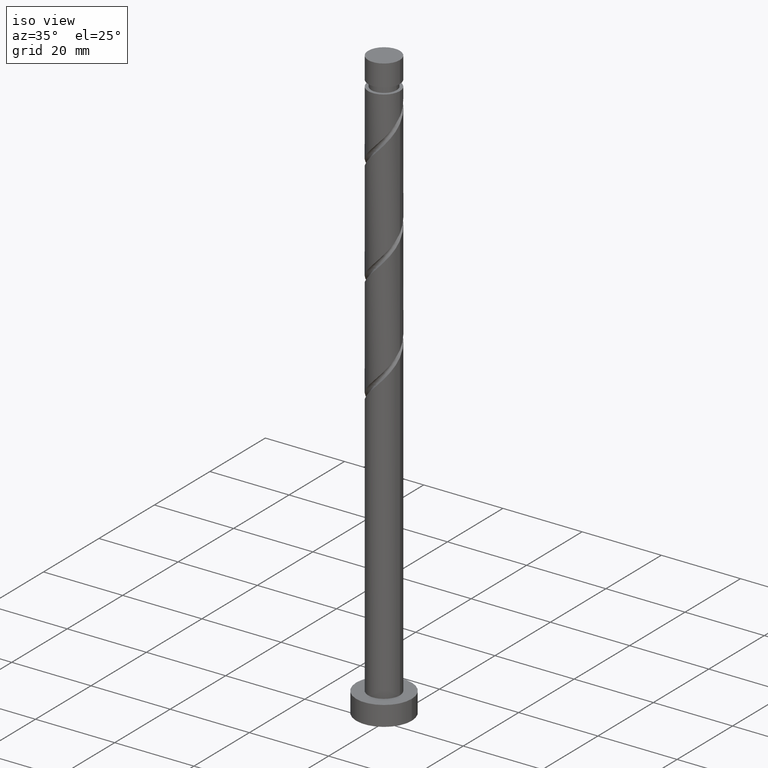
[diagram: clean part render]
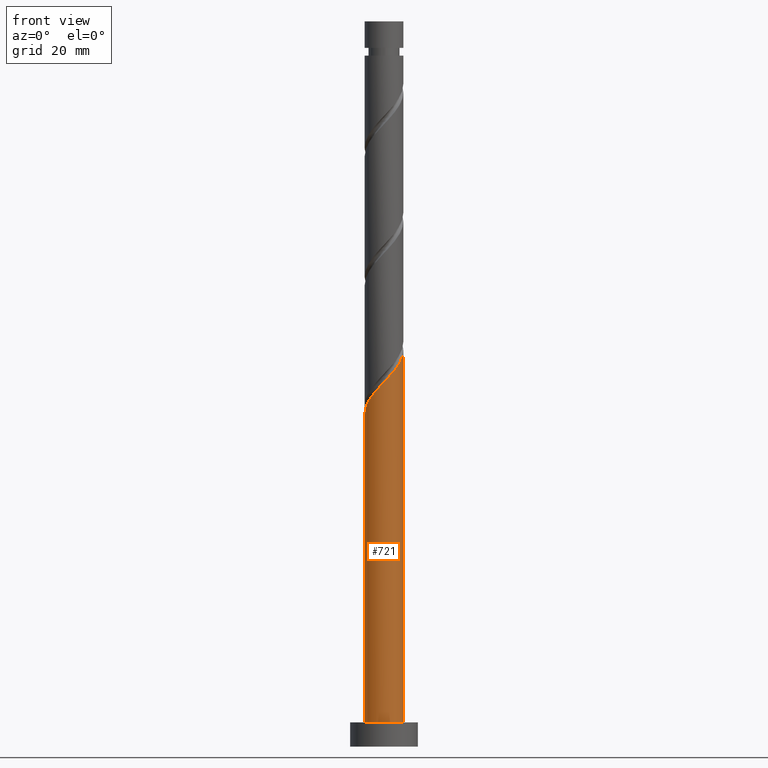
[diagram: tour spotlight — one face highlighted and labeled with its STEP entity id]
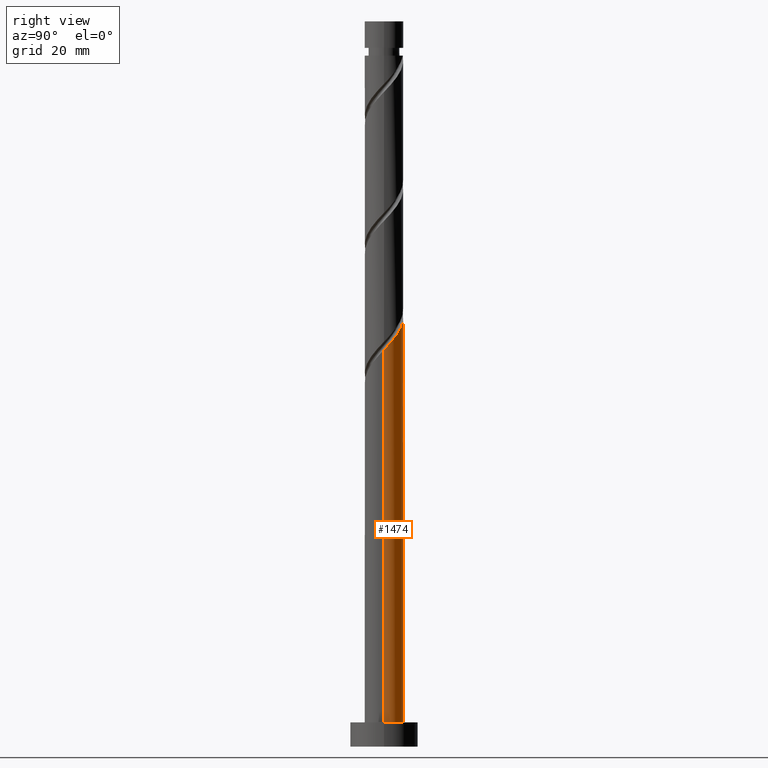
[diagram: tour spotlight — one face highlighted and labeled with its STEP entity id]
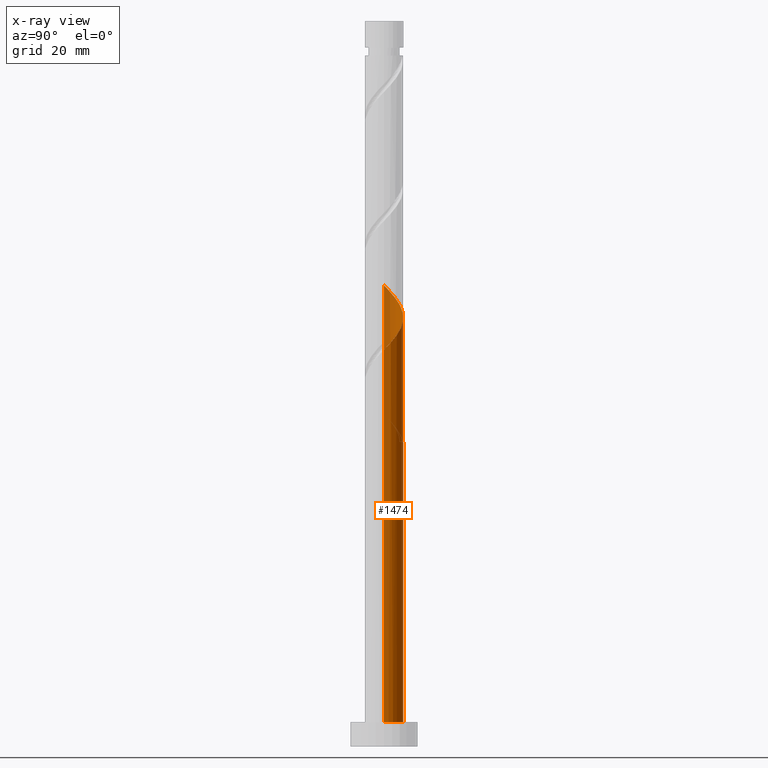
[diagram: x-ray of the same camera — body ghosted, this tour face saturated]
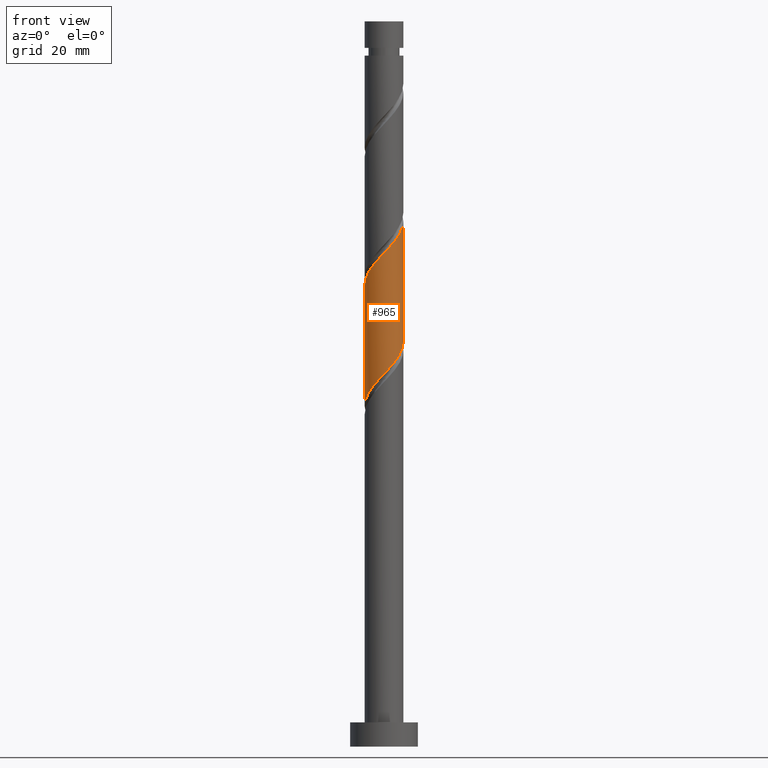
[diagram: tour spotlight — one face highlighted and labeled with its STEP entity id]
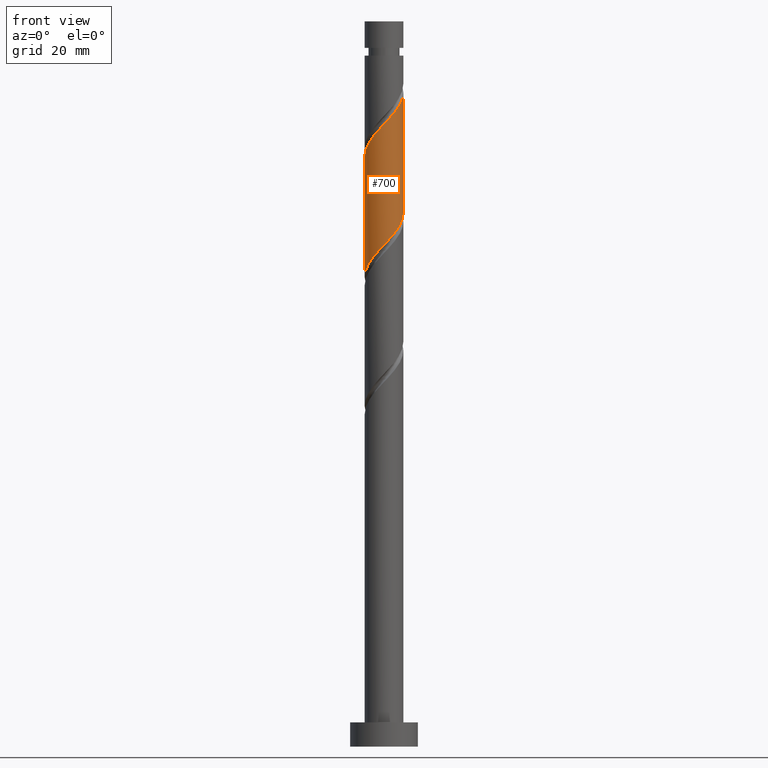
[diagram: tour spotlight — one face highlighted and labeled with its STEP entity id]
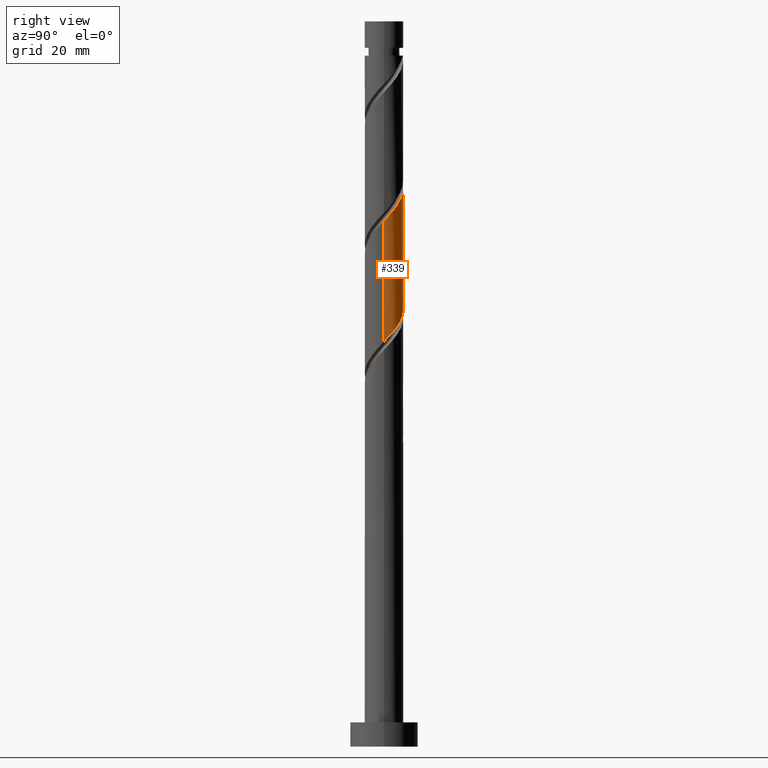
[diagram: tour spotlight — one face highlighted and labeled with its STEP entity id]
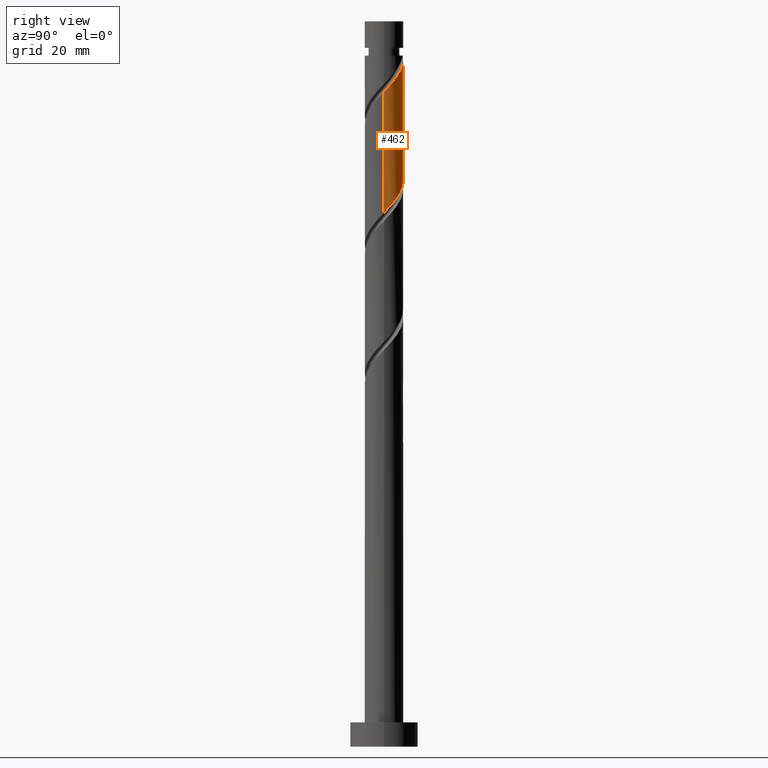
[diagram: tour spotlight — one face highlighted and labeled with its STEP entity id]
A machine part: a face-by-face anatomy tour. The part has 21 B-rep faces; the first image is the clean iso view, then the 6 largest visible faces are spotlighted one at a time (largest first), each with its STEP entity span.

Face 1 — front view, entity #721. In plain terms, the highlighted cylindrical surface (edge-blend (fillet) strip) has radius 4 mm, axis along (-0, -0, -1).
Definition (entity closure, byte-faithful):
#26 = CARTESIAN_POINT ( 'NONE',  ( 3.896423597087605106, -0.9043689247530175557, 81.10056466892469018 ) ) ;
#49 = CARTESIAN_POINT ( 'NONE',  ( 0.000000000000000000, 0.000000000000000000, 5.000000000000000000 ) ) ;
#83 = CARTESIAN_POINT ( 'NONE',  ( -3.960310248029108138, -0.8041752946599105556, 69.58541315377320302 ) ) ;
#100 = CARTESIAN_POINT ( 'NONE',  ( -3.573327494404169524, -1.887348876843109924, 70.79753436589439275 ) ) ;
#141 = CARTESIAN_POINT ( 'NONE',  ( 1.359600862145592837, -3.805553922997110483, 76.85814042650046929 ) ) ;
#148 = CARTESIAN_POINT ( 'NONE',  ( -0.3406448590276062727, -3.985468740313755642, 75.03995860831865627 ) ) ;
#168 = ORIENTED_EDGE ( 'NONE', *, *, #1193, .F. ) ;
#195 = DIRECTION ( 'NONE',  ( 0.000000000000000000, 0.000000000000000000, 1.000000000000000000 ) ) ;
#221 = CARTESIAN_POINT ( 'NONE',  ( -4.000000000000006217, -0.1151021060952899799, 68.85805667919052553 ) ) ;
#280 = EDGE_CURVE ( 'NONE', #1187, #298, #789, .T. ) ;
#281 = CARTESIAN_POINT ( 'NONE',  ( 3.483800894132680348, -1.965485011400590842, 79.88844345680345782 ) ) ;
#298 = VERTEX_POINT ( 'NONE', #638 ) ;
#345 = VECTOR ( 'NONE', #724, 1000.000000000000000 ) ;
#350 = CARTESIAN_POINT ( 'NONE',  ( -2.441275768804712420, -3.168623142730450759, 72.61571618407621997 ) ) ;
#359 = CARTESIAN_POINT ( 'NONE',  ( 4.000000000000007105, 2.363177671152432598E-15, 82.06929200780565736 ) ) ;
#451 = DIRECTION ( 'NONE',  ( 1.000000000000000000, 0.000000000000000000, 0.000000000000000000 ) ) ;
#456 = LINE ( 'NONE', #1360, #345 ) ;
#468 = CARTESIAN_POINT ( 'NONE',  ( -2.896854998579487361, -2.817620677520443540, 72.00965557801563932 ) ) ;
#472 = ORIENTED_EDGE ( 'NONE', *, *, #280, .F. ) ;
#489 = DIRECTION ( 'NONE',  ( -0.000000000000000000, -0.000000000000000000, -1.000000000000000000 ) ) ;
#493 = ORIENTED_EDGE ( 'NONE', *, *, #625, .T. ) ;
#505 = AXIS2_PLACEMENT_3D ( 'NONE', #49, #195, #451 ) ;
#509 = CARTESIAN_POINT ( 'NONE',  ( 1.868138386609204504, -3.536956172823914724, 77.46420103256106415 ) ) ;
#527 = CARTESIAN_POINT ( 'NONE',  ( -1.449682647155076332, -3.728058505782533061, 73.82783739619743812 ) ) ;
#538 = CARTESIAN_POINT ( 'NONE',  ( 2.788941361696815502, -2.867369191613936330, 78.67632224468231072 ) ) ;
#625 = EDGE_CURVE ( 'NONE', #1367, #799, #456, .T. ) ;
#627 = CARTESIAN_POINT ( 'NONE',  ( 4.000000000000007105, -0.4581157095404909119, 81.58333205483434369 ) ) ;
#636 = CARTESIAN_POINT ( 'NONE',  ( 2.376675911072818614, -3.268358422650722517, 78.07026163862165902 ) ) ;
#638 = CARTESIAN_POINT ( 'NONE',  ( 4.000000000000000000, 4.898587196589412829E-16, 5.000000000000000000 ) ) ;
#646 = CARTESIAN_POINT ( 'NONE',  ( 0.7959899496852963496, -3.920000000000005258, 76.25207982043984600 ) ) ;
#721 = ADVANCED_FACE ( 'NONE', ( #748 ), #874, .T. ) ;
#724 = DIRECTION ( 'NONE',  ( -0.000000000000000000, -0.000000000000000000, -1.000000000000000000 ) ) ;
#747 = CARTESIAN_POINT ( 'NONE',  ( -4.000000000000007105, -2.572573161001382137E-15, 68.73595867447231456 ) ) ;
#748 = FACE_OUTER_BOUND ( 'NONE', #1080, .T. ) ;
#781 = VECTOR ( 'NONE', #1010, 1000.000000000000000 ) ;
#789 = LINE ( 'NONE', #1294, #781 ) ;
#799 = VERTEX_POINT ( 'NONE', #1288 ) ;
#854 = CIRCLE ( 'NONE', #505, 4.000000000000000000 ) ;
#871 = EDGE_CURVE ( 'NONE', #799, #298, #854, .T. ) ;
#873 = CARTESIAN_POINT ( 'NONE',  ( -3.993381233129885022, -0.2300137536889532430, 68.97935254771256552 ) ) ;
#874 = CYLINDRICAL_SURFACE ( 'NONE', #1446, 4.000000000000000000 ) ;
#904 = CARTESIAN_POINT ( 'NONE',  ( 3.201206812320814166, -2.466379960577151031, 79.28238285074290559 ) ) ;
#926 = CARTESIAN_POINT ( 'NONE',  ( -1.985696539029938590, -3.519625607940460199, 73.22177679013681484 ) ) ;
#974 = ORIENTED_EDGE ( 'NONE', *, *, #871, .T. ) ;
#1010 = DIRECTION ( 'NONE',  ( -0.000000000000000000, -0.000000000000000000, -1.000000000000000000 ) ) ;
#1026 = CARTESIAN_POINT ( 'NONE',  ( 0.2323790372250005565, -4.034446077002902697, 75.64601921437925114 ) ) ;
#1080 = EDGE_LOOP ( 'NONE', ( #472, #168, #493, #974 ) ) ;
#1111 = CARTESIAN_POINT ( 'NONE',  ( -3.235091246491829775, -2.352484777181775844, 71.40359497195501604 ) ) ;
#1143 = DIRECTION ( 'NONE',  ( -1.000000000000000000, 0.000000000000000000, 0.000000000000000000 ) ) ;
#1187 = VERTEX_POINT ( 'NONE', #359 ) ;
#1193 = EDGE_CURVE ( 'NONE', #1367, #1187, #1616, .T. ) ;
#1250 = CARTESIAN_POINT ( 'NONE',  ( -3.766818871216638165, -1.345762085751509574, 70.19147375983381210 ) ) ;
#1260 = CARTESIAN_POINT ( 'NONE',  ( 0.000000000000000000, 0.000000000000000000, 150.0000000000000000 ) ) ;
#1288 = CARTESIAN_POINT ( 'NONE',  ( -4.000000000000000000, 0.000000000000000000, 5.000000000000000000 ) ) ;
#1294 = CARTESIAN_POINT ( 'NONE',  ( 4.000000000000000000, 4.898587196589412829E-16, 150.0000000000000000 ) ) ;
#1302 = CARTESIAN_POINT ( 'NONE',  ( 3.766394975944548751, -1.464590062224029987, 80.49450406286409532 ) ) ;
#1360 = CARTESIAN_POINT ( 'NONE',  ( -4.000000000000000000, 0.000000000000000000, 150.0000000000000000 ) ) ;
#1367 = VERTEX_POINT ( 'NONE', #1470 ) ;
#1402 = CARTESIAN_POINT ( 'NONE',  ( 4.000000000000007105, 2.363177671152432598E-15, 82.06929200780565736 ) ) ;
#1412 = CARTESIAN_POINT ( 'NONE',  ( -0.9136687552802131851, -3.936491403624608143, 74.43389800225804720 ) ) ;
#1446 = AXIS2_PLACEMENT_3D ( 'NONE', #1260, #489, #1143 ) ;
#1470 = CARTESIAN_POINT ( 'NONE',  ( -4.000000000000007105, -2.572573161001382137E-15, 68.73595867447231456 ) ) ;
#1616 =( BOUNDED_CURVE ( )  B_SPLINE_CURVE ( 2, ( #747, #221, #873, #83, #1250, #100, #1111, #468, #350, #926, #527, #1412, #148, #1026, #646, #141, #509, #636, #538, #904, #281, #1302, #26, #627, #1402 ),
 .UNSPECIFIED., .F., .T. ) 
 B_SPLINE_CURVE_WITH_KNOTS ( ( 3, 2, 2, 2, 2, 2, 2, 2, 2, 2, 2, 2, 3 ),
 ( 0.05452521624175130782, 0.05681818181818176772, 0.06818181818181823228, 0.07954545454545458583, 0.09090909090909093937, 0.1022727272727272929, 0.1136363636363636465, 0.1250000000000000000, 0.1363636363636363535, 0.1477272727272727071, 0.1590909090909090606, 0.1704545454545454142, 0.1795252162417513286 ),
 .UNSPECIFIED. ) 
 CURVE ( )  GEOMETRIC_REPRESENTATION_ITEM ( )  RATIONAL_B_SPLINE_CURVE ( ( 0.9061101570135607908, 0.9072237824201430101, 0.9090909090909204959, 0.8998376744372227343, 0.9090909090909204959, 0.8998376744372227343, 0.9090909090909204959, 0.8998376744372227343, 0.9090909090909204959, 0.8998376744372227343, 0.9090909090909204959, 0.8998376744372227343, 0.9090909090909204959, 0.8998376744372227343, 0.9090909090909204959, 0.8998376744372227343, 0.9090909090909204959, 0.8998376744372227343, 0.9090909090909204959, 0.8998376744372227343, 0.9090909090909204959, 0.8998376744372227343, 0.9090909090909204959, 0.9017048011080002201, 0.9061101570135609018 ) ) 
 REPRESENTATION_ITEM ( '' )  );

Face 2 — right view, entity #1474. An x-ray twin of the same camera follows (body ghosted, this face saturated) — the face is partly hidden behind the body. In plain terms, the highlighted cylindrical surface (edge-blend (fillet) strip) has radius 4 mm, axis along (-0, -0, -1).
Definition (entity closure, byte-faithful):
#6 = CARTESIAN_POINT ( 'NONE',  ( 0.000000000000000000, 0.000000000000000000, 62.91874648710653162 ) ) ;
#8 = CARTESIAN_POINT ( 'NONE',  ( 3.573327494404169968, 1.887348876843108592, 84.13086769922774977 ) ) ;
#31 = EDGE_CURVE ( 'NONE', #188, #1367, #465, .T. ) ;
#54 = EDGE_CURVE ( 'NONE', #188, #1212, #1420, .T. ) ;
#57 = DIRECTION ( 'NONE',  ( -0.000000000000000000, -0.000000000000000000, -1.000000000000000000 ) ) ;
#59 = CARTESIAN_POINT ( 'NONE',  ( -4.000000000000000000, 0.000000000000000000, 150.0000000000000000 ) ) ;
#110 = CARTESIAN_POINT ( 'NONE',  ( 1.985696539029937258, 3.519625607940461087, 86.55511012347015765 ) ) ;
#128 = CARTESIAN_POINT ( 'NONE',  ( -1.359600862145593059, 3.805553922997109595, 63.52480709316715490 ) ) ;
#140 = DIRECTION ( 'NONE',  ( 0.000000000000000000, -0.000000000000000000, -1.000000000000000000 ) ) ;
#147 = CARTESIAN_POINT ( 'NONE',  ( -3.896423597087605106, 0.9043689247530177777, 67.76723133559139001 ) ) ;
#153 = EDGE_CURVE ( 'NONE', #1454, #1115, #701, .T. ) ;
#172 = CARTESIAN_POINT ( 'NONE',  ( -1.449682647155071891, 3.728058505782529064, 65.34298891134895371 ) ) ;
#188 = VERTEX_POINT ( 'NONE', #889 ) ;
#197 = ORIENTED_EDGE ( 'NONE', *, *, #1327, .F. ) ;
#238 = AXIS2_PLACEMENT_3D ( 'NONE', #1595, #57, #570 ) ;
#252 = CARTESIAN_POINT ( 'NONE',  ( -0.7959899496852959055, 3.920000000000005258, 89.58541315377320302 ) ) ;
#262 = DIRECTION ( 'NONE',  ( 1.000000000000000000, 0.000000000000000000, 0.000000000000000000 ) ) ;
#280 = EDGE_CURVE ( 'NONE', #1187, #298, #789, .T. ) ;
#286 = FACE_OUTER_BOUND ( 'NONE', #1406, .T. ) ;
#298 = VERTEX_POINT ( 'NONE', #638 ) ;
#307 = ORIENTED_EDGE ( 'NONE', *, *, #54, .T. ) ;
#324 = CARTESIAN_POINT ( 'NONE',  ( -0.3406448590276051069, 3.985468740313749425, 64.13086769922774977 ) ) ;
#345 = VECTOR ( 'NONE', #724, 1000.000000000000000 ) ;
#359 = CARTESIAN_POINT ( 'NONE',  ( 4.000000000000007105, 2.363177671152432598E-15, 82.06929200780565736 ) ) ;
#396 = CARTESIAN_POINT ( 'NONE',  ( 0.3406448590276067168, 3.985468740313755642, 88.37329194165197066 ) ) ;
#411 = CARTESIAN_POINT ( 'NONE',  ( 2.441275768804711976, 3.168623142730451647, 85.94904951740956278 ) ) ;
#431 = CARTESIAN_POINT ( 'NONE',  ( -2.376675911072818614, 3.268358422650722961, 64.73692830528833042 ) ) ;
#439 = ORIENTED_EDGE ( 'NONE', *, *, #280, .T. ) ;
#447 = CARTESIAN_POINT ( 'NONE',  ( -0.9136687552802109646, 3.936491403624601038, 64.73692830528834463 ) ) ;
#450 = DIRECTION ( 'NONE',  ( -0.000000000000000000, -0.000000000000000000, -1.000000000000000000 ) ) ;
#456 = LINE ( 'NONE', #1360, #345 ) ;
#465 =( BOUNDED_CURVE ( )  B_SPLINE_CURVE ( 2, ( #566, #128, #1419, #431, #1593, #795, #1279, #1158, #147, #1467, #537 ),
 .UNSPECIFIED., .F., .T. ) 
 B_SPLINE_CURVE_WITH_KNOTS ( ( 3, 2, 2, 2, 2, 3 ),
 ( 0.000000000000000000, 0.01136363636363635354, 0.02272727272727270709, 0.03409090909090906063, 0.04545454545454541417, 0.05452521624175130782 ),
 .UNSPECIFIED. ) 
 CURVE ( )  GEOMETRIC_REPRESENTATION_ITEM ( )  RATIONAL_B_SPLINE_CURVE ( ( 0.9090909090909204959, 0.8998376744372227343, 0.9090909090909204959, 0.8998376744372227343, 0.9090909090909204959, 0.8998376744372227343, 0.9090909090909204959, 0.8998376744372227343, 0.9090909090909204959, 0.9017048011080002201, 0.9061101570135607908 ) ) 
 REPRESENTATION_ITEM ( '' )  );
#499 = CARTESIAN_POINT ( 'NONE',  ( -1.868138386609205615, 3.536956172823914724, 90.79753436589437854 ) ) ;
#519 = CARTESIAN_POINT ( 'NONE',  ( -3.483800894132680792, 1.965485011400590398, 93.22177679013682905 ) ) ;
#537 = CARTESIAN_POINT ( 'NONE',  ( -4.000000000000007105, -2.572573161001382137E-15, 68.73595867447231456 ) ) ;
#559 = CARTESIAN_POINT ( 'NONE',  ( -3.573327494404163307, 1.887348876843107703, 68.37329194165199908 ) ) ;
#566 = CARTESIAN_POINT ( 'NONE',  ( -0.7959899496852959055, 3.920000000000005258, 62.91874648710653162 ) ) ;
#567 = ORIENTED_EDGE ( 'NONE', *, *, #1227, .T. ) ;
#570 = DIRECTION ( 'NONE',  ( -1.000000000000000000, 0.000000000000000000, 0.000000000000000000 ) ) ;
#625 = EDGE_CURVE ( 'NONE', #1367, #799, #456, .T. ) ;
#638 = CARTESIAN_POINT ( 'NONE',  ( 4.000000000000000000, 4.898587196589412829E-16, 5.000000000000000000 ) ) ;
#666 = CARTESIAN_POINT ( 'NONE',  ( -2.788941361696815502, 2.867369191613936330, 92.00965557801561090 ) ) ;
#669 = ORIENTED_EDGE ( 'NONE', *, *, #31, .F. ) ;
#701 = LINE ( 'NONE', #59, #1017 ) ;
#708 = CARTESIAN_POINT ( 'NONE',  ( -3.766818871216632836, 1.345762085751508685, 68.97935254771260816 ) ) ;
#722 = CIRCLE ( 'NONE', #1389, 4.000000000000000000 ) ;
#724 = DIRECTION ( 'NONE',  ( -0.000000000000000000, -0.000000000000000000, -1.000000000000000000 ) ) ;
#757 = CARTESIAN_POINT ( 'NONE',  ( -4.000000000000007105, 0.4581157095404911894, 94.91666538816765808 ) ) ;
#766 = CARTESIAN_POINT ( 'NONE',  ( -3.201206812320814166, 2.466379960577149699, 92.61571618407623419 ) ) ;
#776 = CARTESIAN_POINT ( 'NONE',  ( -3.766394975944548307, 1.464590062224031319, 93.82783739619745234 ) ) ;
#781 = VECTOR ( 'NONE', #1010, 1000.000000000000000 ) ;
#789 = LINE ( 'NONE', #1294, #781 ) ;
#791 = ORIENTED_EDGE ( 'NONE', *, *, #153, .F. ) ;
#795 = CARTESIAN_POINT ( 'NONE',  ( -3.201206812320814166, 2.466379960577149699, 65.94904951740956278 ) ) ;
#796 = CARTESIAN_POINT ( 'NONE',  ( 2.896854998579489138, 2.817620677520441763, 85.34298891134895371 ) ) ;
#799 = VERTEX_POINT ( 'NONE', #1288 ) ;
#803 = CARTESIAN_POINT ( 'NONE',  ( -3.993381233129879693, 0.2300137536889541590, 70.19147375983381210 ) ) ;
#817 = CYLINDRICAL_SURFACE ( 'NONE', #238, 4.000000000000000000 ) ;
#889 = CARTESIAN_POINT ( 'NONE',  ( -0.7959899496852959055, 3.920000000000005258, 62.91874648710653162 ) ) ;
#895 = CARTESIAN_POINT ( 'NONE',  ( 3.766818871216638165, 1.345762085751509352, 83.52480709316711227 ) ) ;
#912 = CARTESIAN_POINT ( 'NONE',  ( 0.000000000000000000, 0.000000000000000000, 5.000000000000000000 ) ) ;
#920 = CARTESIAN_POINT ( 'NONE',  ( 3.960310248029108138, 0.8041752946599101115, 82.91874648710654583 ) ) ;
#930 =( BOUNDED_CURVE ( )  B_SPLINE_CURVE ( 2, ( #1552, #1442, #803, #1459, #708, #559, #1091, #1076, #1585, #1318, #172, #447, #324, #945, #955 ),
 .UNSPECIFIED., .F., .T. ) 
 B_SPLINE_CURVE_WITH_KNOTS ( ( 3, 2, 2, 2, 2, 2, 2, 3 ),
 ( 0.9295252162417513286, 0.9318181818181817677, 0.9431818181818182323, 0.9545454545454545858, 0.9659090909090909394, 0.9772727272727272929, 0.9886363636363636465, 1.000000000000000000 ),
 .UNSPECIFIED. ) 
 CURVE ( )  GEOMETRIC_REPRESENTATION_ITEM ( )  RATIONAL_B_SPLINE_CURVE ( ( 0.9061101570135539074, 0.9072237824201361267, 0.9090909090909136125, 0.8998376744372160729, 0.9090909090909136125, 0.8998376744372160729, 0.9090909090909136125, 0.8998376744372160729, 0.9090909090909136125, 0.8998376744372160729, 0.9090909090909136125, 0.8998376744372160729, 0.9090909090909136125, 0.8998376744372160729, 0.9090909090909136125 ) ) 
 REPRESENTATION_ITEM ( '' )  );
#945 = CARTESIAN_POINT ( 'NONE',  ( 0.2323790372250009173, 4.034446077002894704, 63.52480709316714069 ) ) ;
#955 = CARTESIAN_POINT ( 'NONE',  ( 0.7959899496852973488, 3.919999999999999041, 62.91874648710653162 ) ) ;
#1010 = DIRECTION ( 'NONE',  ( -0.000000000000000000, -0.000000000000000000, -1.000000000000000000 ) ) ;
#1017 = VECTOR ( 'NONE', #450, 1000.000000000000000 ) ;
#1018 = CARTESIAN_POINT ( 'NONE',  ( 0.9136687552802137402, 3.936491403624606367, 87.76723133559139001 ) ) ;
#1076 = CARTESIAN_POINT ( 'NONE',  ( -2.896854998579481588, 2.817620677520439099, 67.16117072953076672 ) ) ;
#1083 = DIRECTION ( 'NONE',  ( -1.000000000000000000, 0.000000000000000000, 0.000000000000000000 ) ) ;
#1091 = CARTESIAN_POINT ( 'NONE',  ( -3.235091246491822226, 2.352484777181774067, 67.76723133559139001 ) ) ;
#1115 = VERTEX_POINT ( 'NONE', #1507 ) ;
#1151 = CARTESIAN_POINT ( 'NONE',  ( -0.2323790372250000569, 4.034446077002902697, 88.97935254771260816 ) ) ;
#1158 = CARTESIAN_POINT ( 'NONE',  ( -3.766394975944548307, 1.464590062224031319, 67.16117072953076672 ) ) ;
#1160 = CARTESIAN_POINT ( 'NONE',  ( 4.000000000000007105, 2.363177671152432598E-15, 82.06929200780565736 ) ) ;
#1177 = CARTESIAN_POINT ( 'NONE',  ( -3.896423597087605106, 0.9043689247530177777, 94.43389800225801878 ) ) ;
#1187 = VERTEX_POINT ( 'NONE', #359 ) ;
#1190 = CARTESIAN_POINT ( 'NONE',  ( -4.000000000000007105, -2.572573161001382137E-15, 95.40262534113897175 ) ) ;
#1212 = VERTEX_POINT ( 'NONE', #1561 ) ;
#1223 = AXIS2_PLACEMENT_3D ( 'NONE', #6, #140, #1083 ) ;
#1227 = EDGE_CURVE ( 'NONE', #298, #799, #722, .T. ) ;
#1259 = CARTESIAN_POINT ( 'NONE',  ( -4.000000000000007105, -2.572573161001382137E-15, 95.40262534113897175 ) ) ;
#1265 = EDGE_CURVE ( 'NONE', #1187, #1454, #1274, .T. ) ;
#1274 =( BOUNDED_CURVE ( )  B_SPLINE_CURVE ( 2, ( #1160, #1536, #1650, #920, #895, #8, #1429, #796, #411, #110, #1435, #1018, #396, #1151, #252, #1282, #499, #1421, #666, #766, #519, #776, #1177, #757, #1259 ),
 .UNSPECIFIED., .F., .T. ) 
 B_SPLINE_CURVE_WITH_KNOTS ( ( 3, 2, 2, 2, 2, 2, 2, 2, 2, 2, 2, 2, 3 ),
 ( 0.1795252162417513286, 0.1818181818181817677, 0.1931818181818182323, 0.2045454545454545858, 0.2159090909090909394, 0.2272727272727272929, 0.2386363636363636465, 0.2500000000000000000, 0.2613636363636363535, 0.2727272727272727071, 0.2840909090909090606, 0.2954545454545454142, 0.3045252162417513286 ),
 .UNSPECIFIED. ) 
 CURVE ( )  GEOMETRIC_REPRESENTATION_ITEM ( )  RATIONAL_B_SPLINE_CURVE ( ( 0.9061101570135609018, 0.9072237824201430101, 0.9090909090909204959, 0.8998376744372227343, 0.9090909090909204959, 0.8998376744372227343, 0.9090909090909204959, 0.8998376744372227343, 0.9090909090909204959, 0.8998376744372227343, 0.9090909090909204959, 0.8998376744372227343, 0.9090909090909204959, 0.8998376744372227343, 0.9090909090909204959, 0.8998376744372227343, 0.9090909090909204959, 0.8998376744372227343, 0.9090909090909204959, 0.8998376744372227343, 0.9090909090909204959, 0.8998376744372227343, 0.9090909090909204959, 0.9017048011080002201, 0.9061101570135609018 ) ) 
 REPRESENTATION_ITEM ( '' )  );
#1279 = CARTESIAN_POINT ( 'NONE',  ( -3.483800894132680792, 1.965485011400590398, 66.55511012347015765 ) ) ;
#1282 = CARTESIAN_POINT ( 'NONE',  ( -1.359600862145593059, 3.805553922997109595, 90.19147375983378367 ) ) ;
#1288 = CARTESIAN_POINT ( 'NONE',  ( -4.000000000000000000, 0.000000000000000000, 5.000000000000000000 ) ) ;
#1294 = CARTESIAN_POINT ( 'NONE',  ( 4.000000000000000000, 4.898587196589412829E-16, 150.0000000000000000 ) ) ;
#1296 = ORIENTED_EDGE ( 'NONE', *, *, #625, .F. ) ;
#1318 = CARTESIAN_POINT ( 'NONE',  ( -1.985696539029933927, 3.519625607940455314, 65.94904951740954857 ) ) ;
#1327 = EDGE_CURVE ( 'NONE', #1115, #1212, #930, .T. ) ;
#1360 = CARTESIAN_POINT ( 'NONE',  ( -4.000000000000000000, 0.000000000000000000, 150.0000000000000000 ) ) ;
#1367 = VERTEX_POINT ( 'NONE', #1470 ) ;
#1389 = AXIS2_PLACEMENT_3D ( 'NONE', #912, #1544, #262 ) ;
#1406 = EDGE_LOOP ( 'NONE', ( #1465, #439, #567, #1296, #669, #307, #197, #791 ) ) ;
#1419 = CARTESIAN_POINT ( 'NONE',  ( -1.868138386609205615, 3.536956172823914724, 64.13086769922773556 ) ) ;
#1420 = CIRCLE ( 'NONE', #1223, 4.000000000000000000 ) ;
#1421 = CARTESIAN_POINT ( 'NONE',  ( -2.376675911072818614, 3.268358422650722961, 91.40359497195500182 ) ) ;
#1429 = CARTESIAN_POINT ( 'NONE',  ( 3.235091246491829775, 2.352484777181775844, 84.73692830528833042 ) ) ;
#1435 = CARTESIAN_POINT ( 'NONE',  ( 1.449682647155073889, 3.728058505782533061, 87.16117072953075251 ) ) ;
#1442 = CARTESIAN_POINT ( 'NONE',  ( -4.000000000000000000, 0.1151021060952920338, 70.31276962835586630 ) ) ;
#1454 = VERTEX_POINT ( 'NONE', #1190 ) ;
#1459 = CARTESIAN_POINT ( 'NONE',  ( -3.960310248029100588, 0.8041752946599103336, 69.58541315377318881 ) ) ;
#1465 = ORIENTED_EDGE ( 'NONE', *, *, #1265, .F. ) ;
#1467 = CARTESIAN_POINT ( 'NONE',  ( -4.000000000000006217, 0.4581157095404921886, 68.24999872150102931 ) ) ;
#1470 = CARTESIAN_POINT ( 'NONE',  ( -4.000000000000007105, -2.572573161001382137E-15, 68.73595867447231456 ) ) ;
#1474 = ADVANCED_FACE ( 'NONE', ( #286 ), #817, .T. ) ;
#1507 = CARTESIAN_POINT ( 'NONE',  ( -4.000000000000000000, 3.799032458688116501E-15, 70.43486763307407728 ) ) ;
#1536 = CARTESIAN_POINT ( 'NONE',  ( 4.000000000000006217, 0.1151021060952906461, 82.19139001252386834 ) ) ;
#1544 = DIRECTION ( 'NONE',  ( 0.000000000000000000, 0.000000000000000000, 1.000000000000000000 ) ) ;
#1552 = CARTESIAN_POINT ( 'NONE',  ( -4.000000000000000000, 3.799032458688116501E-15, 70.43486763307407728 ) ) ;
#1561 = CARTESIAN_POINT ( 'NONE',  ( 0.7959899496852972378, 3.919999999999999041, 62.91874648710653162 ) ) ;
#1585 = CARTESIAN_POINT ( 'NONE',  ( -2.441275768804707536, 3.168623142730447650, 66.55511012347017186 ) ) ;
#1593 = CARTESIAN_POINT ( 'NONE',  ( -2.788941361696815502, 2.867369191613936330, 65.34298891134893950 ) ) ;
#1595 = CARTESIAN_POINT ( 'NONE',  ( 0.000000000000000000, 0.000000000000000000, 150.0000000000000000 ) ) ;
#1650 = CARTESIAN_POINT ( 'NONE',  ( 3.993381233129885022, 0.2300137536889528267, 82.31268588104590833 ) ) ;

Face 3 — front view, entity #965. In plain terms, the highlighted cylindrical surface (edge-blend (fillet) strip) has radius 4 mm, axis along (-0, -0, -1).
Definition (entity closure, byte-faithful):
#19 = CARTESIAN_POINT ( 'NONE',  ( -3.483800894132675463, -1.965485011400586179, 72.61571618407623419 ) ) ;
#28 = CARTESIAN_POINT ( 'NONE',  ( 0.7959899496852963496, -3.920000000000005258, 102.9187464871065174 ) ) ;
#35 = CARTESIAN_POINT ( 'NONE',  ( 0.9136687552802115198, -3.936491403624600149, 78.07026163862167323 ) ) ;
#41 = CARTESIAN_POINT ( 'NONE',  ( 4.000000000000000000, -4.606700776676927727E-15, 83.76820096640743429 ) ) ;
#55 = VERTEX_POINT ( 'NONE', #517 ) ;
#59 = CARTESIAN_POINT ( 'NONE',  ( -4.000000000000000000, 0.000000000000000000, 150.0000000000000000 ) ) ;
#61 = CARTESIAN_POINT ( 'NONE',  ( 4.000000000000000000, 4.898587196589412829E-16, 150.0000000000000000 ) ) ;
#68 = CARTESIAN_POINT ( 'NONE',  ( 4.000000000000007105, 2.363177671152432598E-15, 108.7359586744723146 ) ) ;
#79 = LINE ( 'NONE', #61, #1246 ) ;
#143 = CARTESIAN_POINT ( 'NONE',  ( 3.993381233129879693, -0.2300137536889546586, 83.52480709316715490 ) ) ;
#151 = CARTESIAN_POINT ( 'NONE',  ( 3.201206812320814166, -2.466379960577151031, 105.9490495174095344 ) ) ;
#153 = EDGE_CURVE ( 'NONE', #1454, #1115, #701, .T. ) ;
#177 = ORIENTED_EDGE ( 'NONE', *, *, #474, .F. ) ;
#283 = CARTESIAN_POINT ( 'NONE',  ( -1.359600862145591726, -3.805553922997102934, 75.64601921437925114 ) ) ;
#288 = CARTESIAN_POINT ( 'NONE',  ( -3.235091246491829775, -2.352484777181775844, 98.07026163862167323 ) ) ;
#297 = CARTESIAN_POINT ( 'NONE',  ( 1.985696539029933483, -3.519625607940455314, 79.28238285074290559 ) ) ;
#306 = CARTESIAN_POINT ( 'NONE',  ( -0.7959899496852970158, -3.919999999999999041, 76.25207982043986021 ) ) ;
#316 = CARTESIAN_POINT ( 'NONE',  ( -3.993381233129885022, -0.2300137536889532430, 95.64601921437923693 ) ) ;
#395 = EDGE_CURVE ( 'NONE', #55, #1115, #413, .T. ) ;
#401 = CYLINDRICAL_SURFACE ( 'NONE', #1119, 4.000000000000000000 ) ;
#406 = CARTESIAN_POINT ( 'NONE',  ( -3.766394975944542534, -1.464590062224027545, 72.00965557801562511 ) ) ;
#413 =( BOUNDED_CURVE ( )  B_SPLINE_CURVE ( 2, ( #41, #529, #143, #928, #658, #1179, #936, #1186, #1171, #297, #1057, #35, #414, #1046, #306, #283, #1437, #1200, #949, #1070, #19, #406, #812, #1563, #798 ),
 .UNSPECIFIED., .F., .T. ) 
 B_SPLINE_CURVE_WITH_KNOTS ( ( 3, 2, 2, 2, 2, 2, 2, 2, 2, 2, 2, 2, 3 ),
 ( 0.8045252162417513286, 0.8068181818181817677, 0.8181818181818182323, 0.8295454545454545858, 0.8409090909090909394, 0.8522727272727272929, 0.8636363636363636465, 0.8750000000000000000, 0.8863636363636363535, 0.8977272727272727071, 0.9090909090909090606, 0.9204545454545454142, 0.9295252162417513286 ),
 .UNSPECIFIED. ) 
 CURVE ( )  GEOMETRIC_REPRESENTATION_ITEM ( )  RATIONAL_B_SPLINE_CURVE ( ( 0.9061101570135539074, 0.9072237824201361267, 0.9090909090909136125, 0.8998376744372160729, 0.9090909090909136125, 0.8998376744372160729, 0.9090909090909136125, 0.8998376744372160729, 0.9090909090909136125, 0.8998376744372160729, 0.9090909090909136125, 0.8998376744372160729, 0.9090909090909136125, 0.8998376744372160729, 0.9090909090909136125, 0.8998376744372160729, 0.9090909090909136125, 0.8998376744372160729, 0.9090909090909136125, 0.8998376744372160729, 0.9090909090909136125, 0.8998376744372160729, 0.9090909090909136125, 0.9017048011079934478, 0.9061101570135539074 ) ) 
 REPRESENTATION_ITEM ( '' )  );
#414 = CARTESIAN_POINT ( 'NONE',  ( 0.3406448590276036081, -3.985468740313749425, 77.46420103256107836 ) ) ;
#436 = DIRECTION ( 'NONE',  ( -0.000000000000000000, -0.000000000000000000, -1.000000000000000000 ) ) ;
#437 = CARTESIAN_POINT ( 'NONE',  ( -3.573327494404169524, -1.887348876843109924, 97.46420103256109257 ) ) ;
#450 = DIRECTION ( 'NONE',  ( -0.000000000000000000, -0.000000000000000000, -1.000000000000000000 ) ) ;
#452 = CARTESIAN_POINT ( 'NONE',  ( 4.000000000000007105, 2.363177671152432598E-15, 108.7359586744723146 ) ) ;
#458 =( BOUNDED_CURVE ( )  B_SPLINE_CURVE ( 2, ( #1588, #1571, #316, #683, #828, #437, #288, #806, #922, #1431, #674, #545, #1079, #958, #28, #1463, #1064, #1304, #1578, #151, #668, #573, #985, #1473, #452 ),
 .UNSPECIFIED., .F., .T. ) 
 B_SPLINE_CURVE_WITH_KNOTS ( ( 3, 2, 2, 2, 2, 2, 2, 2, 2, 2, 2, 2, 3 ),
 ( 0.3045252162417513286, 0.3068181818181817677, 0.3181818181818182323, 0.3295454545454545858, 0.3409090909090909394, 0.3522727272727272929, 0.3636363636363636465, 0.3750000000000000000, 0.3863636363636363535, 0.3977272727272727071, 0.4090909090909090606, 0.4204545454545454142, 0.4295252162417513286 ),
 .UNSPECIFIED. ) 
 CURVE ( )  GEOMETRIC_REPRESENTATION_ITEM ( )  RATIONAL_B_SPLINE_CURVE ( ( 0.9061101570135609018, 0.9072237824201430101, 0.9090909090909204959, 0.8998376744372227343, 0.9090909090909204959, 0.8998376744372227343, 0.9090909090909204959, 0.8998376744372227343, 0.9090909090909204959, 0.8998376744372227343, 0.9090909090909204959, 0.8998376744372227343, 0.9090909090909204959, 0.8998376744372227343, 0.9090909090909204959, 0.8998376744372227343, 0.9090909090909204959, 0.8998376744372227343, 0.9090909090909204959, 0.8998376744372227343, 0.9090909090909204959, 0.8998376744372227343, 0.9090909090909204959, 0.9017048011080002201, 0.9061101570135609018 ) ) 
 REPRESENTATION_ITEM ( '' )  );
#474 = EDGE_CURVE ( 'NONE', #1454, #938, #458, .T. ) ;
#517 = CARTESIAN_POINT ( 'NONE',  ( 4.000000000000000000, -4.606700776676927727E-15, 83.76820096640743429 ) ) ;
#529 = CARTESIAN_POINT ( 'NONE',  ( 4.000000000000000000, -0.1151021060952927000, 83.64610296168922332 ) ) ;
#545 = CARTESIAN_POINT ( 'NONE',  ( -0.9136687552802131851, -3.936491403624608143, 101.1005646689246902 ) ) ;
#573 = CARTESIAN_POINT ( 'NONE',  ( 3.766394975944548751, -1.464590062224029987, 107.1611707295307525 ) ) ;
#658 = CARTESIAN_POINT ( 'NONE',  ( 3.766818871216632836, -1.345762085751509129, 82.31268588104592254 ) ) ;
#668 = CARTESIAN_POINT ( 'NONE',  ( 3.483800894132680348, -1.965485011400590842, 106.5551101234701576 ) ) ;
#674 = CARTESIAN_POINT ( 'NONE',  ( -1.449682647155076332, -3.728058505782533061, 100.4945040628641237 ) ) ;
#682 = EDGE_CURVE ( 'NONE', #938, #55, #79, .T. ) ;
#683 = CARTESIAN_POINT ( 'NONE',  ( -3.960310248029108138, -0.8041752946599105556, 96.25207982043987442 ) ) ;
#697 = ORIENTED_EDGE ( 'NONE', *, *, #395, .F. ) ;
#701 = LINE ( 'NONE', #59, #1017 ) ;
#717 = DIRECTION ( 'NONE',  ( -0.000000000000000000, -0.000000000000000000, -1.000000000000000000 ) ) ;
#798 = CARTESIAN_POINT ( 'NONE',  ( -4.000000000000000000, 3.799032458688116501E-15, 70.43486763307407728 ) ) ;
#806 = CARTESIAN_POINT ( 'NONE',  ( -2.896854998579487361, -2.817620677520443540, 98.67632224468231072 ) ) ;
#812 = CARTESIAN_POINT ( 'NONE',  ( -3.896423597087599777, -0.9043689247530152242, 71.40359497195503025 ) ) ;
#813 = ORIENTED_EDGE ( 'NONE', *, *, #682, .F. ) ;
#828 = CARTESIAN_POINT ( 'NONE',  ( -3.766818871216638165, -1.345762085751509574, 96.85814042650048350 ) ) ;
#922 = CARTESIAN_POINT ( 'NONE',  ( -2.441275768804712420, -3.168623142730450759, 99.28238285074286296 ) ) ;
#928 = CARTESIAN_POINT ( 'NONE',  ( 3.960310248029100588, -0.8041752946599107776, 82.91874648710651741 ) ) ;
#936 = CARTESIAN_POINT ( 'NONE',  ( 3.235091246491823558, -2.352484777181773623, 81.10056466892470439 ) ) ;
#938 = VERTEX_POINT ( 'NONE', #68 ) ;
#949 = CARTESIAN_POINT ( 'NONE',  ( -2.788941361696812393, -2.867369191613930557, 73.82783739619745234 ) ) ;
#957 = DIRECTION ( 'NONE',  ( -1.000000000000000000, 0.000000000000000000, 0.000000000000000000 ) ) ;
#958 = CARTESIAN_POINT ( 'NONE',  ( 0.2323790372250005565, -4.034446077002902697, 102.3126858810459368 ) ) ;
#965 = ADVANCED_FACE ( 'NONE', ( #1328 ), #401, .T. ) ;
#985 = CARTESIAN_POINT ( 'NONE',  ( 3.896423597087605106, -0.9043689247530175557, 107.7672313355913616 ) ) ;
#1017 = VECTOR ( 'NONE', #450, 1000.000000000000000 ) ;
#1046 = CARTESIAN_POINT ( 'NONE',  ( -0.2323790372250019998, -4.034446077002895592, 76.85814042650044087 ) ) ;
#1057 = CARTESIAN_POINT ( 'NONE',  ( 1.449682647155071891, -3.728058505782529064, 78.67632224468232494 ) ) ;
#1064 = CARTESIAN_POINT ( 'NONE',  ( 1.868138386609204504, -3.536956172823914724, 104.1308676992277356 ) ) ;
#1070 = CARTESIAN_POINT ( 'NONE',  ( -3.201206812320808837, -2.466379960577145258, 73.22177679013682905 ) ) ;
#1079 = CARTESIAN_POINT ( 'NONE',  ( -0.3406448590276062727, -3.985468740313755642, 101.7066252749852850 ) ) ;
#1107 = EDGE_LOOP ( 'NONE', ( #813, #177, #1573, #697 ) ) ;
#1115 = VERTEX_POINT ( 'NONE', #1507 ) ;
#1119 = AXIS2_PLACEMENT_3D ( 'NONE', #1603, #436, #957 ) ;
#1171 = CARTESIAN_POINT ( 'NONE',  ( 2.441275768804707536, -3.168623142730448095, 79.88844345680350045 ) ) ;
#1179 = CARTESIAN_POINT ( 'NONE',  ( 3.573327494404163307, -1.887348876843107259, 81.70662527498529926 ) ) ;
#1186 = CARTESIAN_POINT ( 'NONE',  ( 2.896854998579483809, -2.817620677520439099, 80.49450406286409532 ) ) ;
#1190 = CARTESIAN_POINT ( 'NONE',  ( -4.000000000000007105, -2.572573161001382137E-15, 95.40262534113897175 ) ) ;
#1200 = CARTESIAN_POINT ( 'NONE',  ( -2.376675911072815062, -3.268358422650715855, 74.43389800225804720 ) ) ;
#1246 = VECTOR ( 'NONE', #717, 1000.000000000000000 ) ;
#1304 = CARTESIAN_POINT ( 'NONE',  ( 2.376675911072818614, -3.268358422650722517, 104.7369283052883446 ) ) ;
#1328 = FACE_OUTER_BOUND ( 'NONE', #1107, .T. ) ;
#1431 = CARTESIAN_POINT ( 'NONE',  ( -1.985696539029938590, -3.519625607940460199, 99.88844345680350045 ) ) ;
#1437 = CARTESIAN_POINT ( 'NONE',  ( -1.868138386609203172, -3.536956172823909839, 75.03995860831867049 ) ) ;
#1454 = VERTEX_POINT ( 'NONE', #1190 ) ;
#1463 = CARTESIAN_POINT ( 'NONE',  ( 1.359600862145592837, -3.805553922997110483, 103.5248070931671407 ) ) ;
#1473 = CARTESIAN_POINT ( 'NONE',  ( 4.000000000000007105, -0.4581157095404909119, 108.2499987215010151 ) ) ;
#1507 = CARTESIAN_POINT ( 'NONE',  ( -4.000000000000000000, 3.799032458688116501E-15, 70.43486763307407728 ) ) ;
#1563 = CARTESIAN_POINT ( 'NONE',  ( -4.000000000000000000, -0.4581157095404893020, 70.92082758604536252 ) ) ;
#1571 = CARTESIAN_POINT ( 'NONE',  ( -4.000000000000006217, -0.1151021060952909514, 95.52472334585718272 ) ) ;
#1573 = ORIENTED_EDGE ( 'NONE', *, *, #153, .T. ) ;
#1578 = CARTESIAN_POINT ( 'NONE',  ( 2.788941361696815502, -2.867369191613936330, 105.3429889113489537 ) ) ;
#1588 = CARTESIAN_POINT ( 'NONE',  ( -4.000000000000007105, -2.572573161001382137E-15, 95.40262534113897175 ) ) ;
#1603 = CARTESIAN_POINT ( 'NONE',  ( 0.000000000000000000, 0.000000000000000000, 150.0000000000000000 ) ) ;

Face 4 — front view, entity #700. In plain terms, the highlighted cylindrical surface (edge-blend (fillet) strip) has radius 4 mm, axis along (-0, -0, -1).
Definition (entity closure, byte-faithful):
#78 = CARTESIAN_POINT ( 'NONE',  ( -2.441275768804712420, -3.168623142730450759, 125.9490495174095486 ) ) ;
#90 = CARTESIAN_POINT ( 'NONE',  ( -2.896854998579487361, -2.817620677520443540, 125.3429889113489537 ) ) ;
#126 = VECTOR ( 'NONE', #1263, 1000.000000000000000 ) ;
#136 = VERTEX_POINT ( 'NONE', #902 ) ;
#161 = ORIENTED_EDGE ( 'NONE', *, *, #868, .F. ) ;
#170 = EDGE_CURVE ( 'NONE', #136, #1181, #1106, .T. ) ;
#184 = CARTESIAN_POINT ( 'NONE',  ( -3.483800894132675463, -1.965485011400586179, 99.28238285074287717 ) ) ;
#231 = CARTESIAN_POINT ( 'NONE',  ( 3.896423597087605106, -0.9043689247530175557, 134.4338980022580472 ) ) ;
#242 = CARTESIAN_POINT ( 'NONE',  ( -0.3406448590276062727, -3.985468740313755642, 128.3732919416519564 ) ) ;
#248 = CARTESIAN_POINT ( 'NONE',  ( 1.449682647155071891, -3.728058505782529064, 105.3429889113489679 ) ) ;
#256 = ORIENTED_EDGE ( 'NONE', *, *, #170, .F. ) ;
#317 = ORIENTED_EDGE ( 'NONE', *, *, #1084, .T. ) ;
#368 = CARTESIAN_POINT ( 'NONE',  ( 0.2323790372250005565, -4.034446077002902697, 128.9793525477125797 ) ) ;
#374 = CARTESIAN_POINT ( 'NONE',  ( 2.441275768804707536, -3.168623142730448095, 106.5551101234701861 ) ) ;
#384 = CARTESIAN_POINT ( 'NONE',  ( 3.766818871216632836, -1.345762085751509129, 108.9793525477125939 ) ) ;
#409 = CARTESIAN_POINT ( 'NONE',  ( -1.868138386609203172, -3.536956172823909839, 101.7066252749853419 ) ) ;
#455 = CARTESIAN_POINT ( 'NONE',  ( -3.235091246491829775, -2.352484777181775844, 124.7369283052883162 ) ) ;
#463 = CARTESIAN_POINT ( 'NONE',  ( 1.359600862145592837, -3.805553922997110483, 130.1914737598337979 ) ) ;
#464 = CARTESIAN_POINT ( 'NONE',  ( 0.000000000000000000, 0.000000000000000000, 150.0000000000000000 ) ) ;
#488 = CARTESIAN_POINT ( 'NONE',  ( -3.960310248029108138, -0.8041752946599105556, 122.9187464871065032 ) ) ;
#541 = VERTEX_POINT ( 'NONE', #1218 ) ;
#553 = ORIENTED_EDGE ( 'NONE', *, *, #1073, .F. ) ;
#562 = CARTESIAN_POINT ( 'NONE',  ( -2.788941361696812393, -2.867369191613930557, 100.4945040628641237 ) ) ;
#574 =( BOUNDED_CURVE ( )  B_SPLINE_CURVE ( 2, ( #1127, #1004, #1513, #1647, #384, #1524, #1656, #1277, #374, #1399, #248, #1023, #1533, #900, #1174, #1337, #409, #663, #562, #918, #184, #1472, #1427, #819, #1210 ),
 .UNSPECIFIED., .F., .T. ) 
 B_SPLINE_CURVE_WITH_KNOTS ( ( 3, 2, 2, 2, 2, 2, 2, 2, 2, 2, 2, 2, 3 ),
 ( 0.5545252162417511066, 0.5568181818181817677, 0.5681818181818182323, 0.5795454545454545858, 0.5909090909090909394, 0.6022727272727272929, 0.6136363636363636465, 0.6250000000000000000, 0.6363636363636363535, 0.6477272727272727071, 0.6590909090909090606, 0.6704545454545454142, 0.6795252162417513286 ),
 .UNSPECIFIED. ) 
 CURVE ( )  GEOMETRIC_REPRESENTATION_ITEM ( )  RATIONAL_B_SPLINE_CURVE ( ( 0.9061101570135539074, 0.9072237824201360157, 0.9090909090909136125, 0.8998376744372160729, 0.9090909090909136125, 0.8998376744372160729, 0.9090909090909136125, 0.8998376744372160729, 0.9090909090909136125, 0.8998376744372160729, 0.9090909090909136125, 0.8998376744372160729, 0.9090909090909136125, 0.8998376744372160729, 0.9090909090909136125, 0.8998376744372160729, 0.9090909090909136125, 0.8998376744372160729, 0.9090909090909136125, 0.8998376744372160729, 0.9090909090909136125, 0.8998376744372160729, 0.9090909090909136125, 0.9017048011079934478, 0.9061101570135539074 ) ) 
 REPRESENTATION_ITEM ( '' )  );
#586 = CARTESIAN_POINT ( 'NONE',  ( -4.000000000000000000, 0.000000000000000000, 150.0000000000000000 ) ) ;
#597 = LINE ( 'NONE', #586, #609 ) ;
#609 = VECTOR ( 'NONE', #1100, 1000.000000000000000 ) ;
#617 = CARTESIAN_POINT ( 'NONE',  ( 3.201206812320814166, -2.466379960577151031, 132.6157161840762058 ) ) ;
#663 = CARTESIAN_POINT ( 'NONE',  ( -2.376675911072815062, -3.268358422650715855, 101.1005646689247186 ) ) ;
#700 = ADVANCED_FACE ( 'NONE', ( #1615 ), #967, .T. ) ;
#707 = EDGE_LOOP ( 'NONE', ( #256, #553, #317, #161 ) ) ;
#723 = CARTESIAN_POINT ( 'NONE',  ( -1.985696539029938590, -3.519625607940460199, 126.5551101234702003 ) ) ;
#819 = CARTESIAN_POINT ( 'NONE',  ( -4.000000000000000000, -0.4581157095404893020, 97.58749425271206235 ) ) ;
#861 = CARTESIAN_POINT ( 'NONE',  ( -0.9136687552802131851, -3.936491403624608143, 127.7672313355913758 ) ) ;
#868 = EDGE_CURVE ( 'NONE', #1181, #541, #574, .T. ) ;
#884 = CARTESIAN_POINT ( 'NONE',  ( 4.000000000000007105, -0.4581157095404898016, 134.9166653881676723 ) ) ;
#900 = CARTESIAN_POINT ( 'NONE',  ( -0.2323790372250019998, -4.034446077002895592, 103.5248070931671123 ) ) ;
#902 = CARTESIAN_POINT ( 'NONE',  ( 4.000000000000007105, 2.363177671152432598E-15, 135.4026253411389860 ) ) ;
#918 = CARTESIAN_POINT ( 'NONE',  ( -3.201206812320808837, -2.466379960577145258, 99.88844345680350045 ) ) ;
#942 =( BOUNDED_CURVE ( )  B_SPLINE_CURVE ( 2, ( #1614, #1228, #1393, #488, #1221, #1359, #455, #90, #78, #723, #1517, #861, #242, #368, #1132, #463, #984, #1609, #1371, #617, #1485, #997, #231, #884, #1490 ),
 .UNSPECIFIED., .F., .T. ) 
 B_SPLINE_CURVE_WITH_KNOTS ( ( 3, 2, 2, 2, 2, 2, 2, 2, 2, 2, 2, 2, 3 ),
 ( 0.5545252162417515507, 0.5568181818181818787, 0.5681818181818181213, 0.5795454545454545858, 0.5909090909090908283, 0.6022727272727272929, 0.6136363636363636465, 0.6250000000000000000, 0.6363636363636363535, 0.6477272727272727071, 0.6590909090909091717, 0.6704545454545454142, 0.6795252162417514397 ),
 .UNSPECIFIED. ) 
 CURVE ( )  GEOMETRIC_REPRESENTATION_ITEM ( )  RATIONAL_B_SPLINE_CURVE ( ( 0.9061101570135610128, 0.9072237824201431211, 0.9090909090909204959, 0.8998376744372227343, 0.9090909090909204959, 0.8998376744372227343, 0.9090909090909204959, 0.8998376744372227343, 0.9090909090909204959, 0.8998376744372227343, 0.9090909090909204959, 0.8998376744372227343, 0.9090909090909204959, 0.8998376744372227343, 0.9090909090909204959, 0.8998376744372227343, 0.9090909090909204959, 0.8998376744372227343, 0.9090909090909204959, 0.8998376744372227343, 0.9090909090909204959, 0.8998376744372227343, 0.9090909090909204959, 0.9017048011080002201, 0.9061101570135609018 ) ) 
 REPRESENTATION_ITEM ( '' )  );
#967 = CYLINDRICAL_SURFACE ( 'NONE', #1361, 4.000000000000000000 ) ;
#984 = CARTESIAN_POINT ( 'NONE',  ( 1.868138386609204504, -3.536956172823914724, 130.7975343658943927 ) ) ;
#997 = CARTESIAN_POINT ( 'NONE',  ( 3.766394975944548751, -1.464590062224029987, 133.8278373961974523 ) ) ;
#1000 = CARTESIAN_POINT ( 'NONE',  ( 4.000000000000000000, 4.898587196589412829E-16, 150.0000000000000000 ) ) ;
#1004 = CARTESIAN_POINT ( 'NONE',  ( 4.000000000000000000, -0.1151021060952815561, 110.3127696283558521 ) ) ;
#1023 = CARTESIAN_POINT ( 'NONE',  ( 0.9136687552802115198, -3.936491403624600149, 104.7369283052883588 ) ) ;
#1055 = CARTESIAN_POINT ( 'NONE',  ( -4.000000000000007105, -2.572573161001382137E-15, 122.0692920078056858 ) ) ;
#1073 = EDGE_CURVE ( 'NONE', #1202, #136, #942, .T. ) ;
#1084 = EDGE_CURVE ( 'NONE', #1202, #541, #597, .T. ) ;
#1094 = DIRECTION ( 'NONE',  ( -0.000000000000000000, -0.000000000000000000, -1.000000000000000000 ) ) ;
#1100 = DIRECTION ( 'NONE',  ( -0.000000000000000000, -0.000000000000000000, -1.000000000000000000 ) ) ;
#1106 = LINE ( 'NONE', #1000, #126 ) ;
#1127 = CARTESIAN_POINT ( 'NONE',  ( 4.000000000000000000, -4.606700776676927727E-15, 110.4348676330741199 ) ) ;
#1132 = CARTESIAN_POINT ( 'NONE',  ( 0.7959899496852963496, -3.920000000000005258, 129.5854131537731462 ) ) ;
#1174 = CARTESIAN_POINT ( 'NONE',  ( -0.7959899496852970158, -3.919999999999999041, 102.9187464871065174 ) ) ;
#1181 = VERTEX_POINT ( 'NONE', #1498 ) ;
#1202 = VERTEX_POINT ( 'NONE', #1055 ) ;
#1210 = CARTESIAN_POINT ( 'NONE',  ( -4.000000000000000000, 3.799032458688116501E-15, 97.10153429974074868 ) ) ;
#1218 = CARTESIAN_POINT ( 'NONE',  ( -4.000000000000000000, 3.799032458688116501E-15, 97.10153429974074868 ) ) ;
#1221 = CARTESIAN_POINT ( 'NONE',  ( -3.766818871216638165, -1.345762085751509574, 123.5248070931671265 ) ) ;
#1228 = CARTESIAN_POINT ( 'NONE',  ( -4.000000000000006217, -0.1151021060952976960, 122.1913900125238968 ) ) ;
#1263 = DIRECTION ( 'NONE',  ( -0.000000000000000000, -0.000000000000000000, -1.000000000000000000 ) ) ;
#1277 = CARTESIAN_POINT ( 'NONE',  ( 2.896854998579483809, -2.817620677520439099, 107.1611707295307525 ) ) ;
#1337 = CARTESIAN_POINT ( 'NONE',  ( -1.359600862145591726, -3.805553922997102934, 102.3126858810459083 ) ) ;
#1351 = DIRECTION ( 'NONE',  ( -1.000000000000000000, 0.000000000000000000, 0.000000000000000000 ) ) ;
#1359 = CARTESIAN_POINT ( 'NONE',  ( -3.573327494404169524, -1.887348876843109924, 124.1308676992277213 ) ) ;
#1361 = AXIS2_PLACEMENT_3D ( 'NONE', #464, #1094, #1351 ) ;
#1371 = CARTESIAN_POINT ( 'NONE',  ( 2.788941361696815502, -2.867369191613936330, 132.0096555780156393 ) ) ;
#1393 = CARTESIAN_POINT ( 'NONE',  ( -3.993381233129885022, -0.2300137536889532430, 122.3126858810459225 ) ) ;
#1399 = CARTESIAN_POINT ( 'NONE',  ( 1.985696539029933483, -3.519625607940455314, 105.9490495174095486 ) ) ;
#1427 = CARTESIAN_POINT ( 'NONE',  ( -3.896423597087599777, -0.9043689247530152242, 98.07026163862168744 ) ) ;
#1472 = CARTESIAN_POINT ( 'NONE',  ( -3.766394975944542534, -1.464590062224027545, 98.67632224468228230 ) ) ;
#1485 = CARTESIAN_POINT ( 'NONE',  ( 3.483800894132680348, -1.965485011400590842, 133.2217767901368006 ) ) ;
#1490 = CARTESIAN_POINT ( 'NONE',  ( 4.000000000000007105, 2.363177671152432598E-15, 135.4026253411389860 ) ) ;
#1498 = CARTESIAN_POINT ( 'NONE',  ( 4.000000000000000000, -4.606700776676927727E-15, 110.4348676330741199 ) ) ;
#1513 = CARTESIAN_POINT ( 'NONE',  ( 3.993381233129879693, -0.2300137536889546586, 110.1914737598338121 ) ) ;
#1517 = CARTESIAN_POINT ( 'NONE',  ( -1.449682647155076332, -3.728058505782533061, 127.1611707295307525 ) ) ;
#1524 = CARTESIAN_POINT ( 'NONE',  ( 3.573327494404163307, -1.887348876843107259, 108.3732919416519707 ) ) ;
#1533 = CARTESIAN_POINT ( 'NONE',  ( 0.3406448590276036081, -3.985468740313749425, 104.1308676992277498 ) ) ;
#1609 = CARTESIAN_POINT ( 'NONE',  ( 2.376675911072818614, -3.268358422650722517, 131.4035949719550445 ) ) ;
#1614 = CARTESIAN_POINT ( 'NONE',  ( -4.000000000000007105, -2.572573161001382137E-15, 122.0692920078056858 ) ) ;
#1615 = FACE_OUTER_BOUND ( 'NONE', #707, .T. ) ;
#1647 = CARTESIAN_POINT ( 'NONE',  ( 3.960310248029100588, -0.8041752946599107776, 109.5854131537731746 ) ) ;
#1656 = CARTESIAN_POINT ( 'NONE',  ( 3.235091246491823558, -2.352484777181773623, 107.7672313355913616 ) ) ;

Face 5 — right view, entity #339. In plain terms, the highlighted cylindrical surface (edge-blend (fillet) strip) has radius 4 mm, axis along (-0, -0, -1).
Definition (entity closure, byte-faithful):
#4 = CARTESIAN_POINT ( 'NONE',  ( 1.985696539029937258, 3.519625607940461087, 113.2217767901368575 ) ) ;
#48 = AXIS2_PLACEMENT_3D ( 'NONE', #1162, #1424, #1124 ) ;
#55 = VERTEX_POINT ( 'NONE', #517 ) ;
#60 = CARTESIAN_POINT ( 'NONE',  ( 2.376675911072815506, 3.268358422650715855, 87.76723133559137580 ) ) ;
#61 = CARTESIAN_POINT ( 'NONE',  ( 4.000000000000000000, 4.898587196589412829E-16, 150.0000000000000000 ) ) ;
#68 = CARTESIAN_POINT ( 'NONE',  ( 4.000000000000007105, 2.363177671152432598E-15, 108.7359586744723146 ) ) ;
#79 = LINE ( 'NONE', #61, #1246 ) ;
#95 = CARTESIAN_POINT ( 'NONE',  ( -3.896423597087605106, 0.9043689247530177777, 121.1005646689246902 ) ) ;
#107 = CARTESIAN_POINT ( 'NONE',  ( -4.000000000000008882, 0.4581157095404845281, 121.5833320548343579 ) ) ;
#113 = CYLINDRICAL_SURFACE ( 'NONE', #48, 4.000000000000000000 ) ;
#258 = CARTESIAN_POINT ( 'NONE',  ( -2.376675911072818614, 3.268358422650722961, 118.0702616386216874 ) ) ;
#305 = CARTESIAN_POINT ( 'NONE',  ( 4.000000000000000000, 0.4581157095404878588, 84.25416091937870533 ) ) ;
#327 = CARTESIAN_POINT ( 'NONE',  ( 3.483800894132675463, 1.965485011400587290, 85.94904951740956278 ) ) ;
#333 = CARTESIAN_POINT ( 'NONE',  ( -3.235091246491822226, 2.352484777181774067, 94.43389800225806141 ) ) ;
#339 = ADVANCED_FACE ( 'NONE', ( #481 ), #113, .T. ) ;
#355 = CARTESIAN_POINT ( 'NONE',  ( -3.483800894132680792, 1.965485011400590398, 119.8884434568034862 ) ) ;
#365 = CARTESIAN_POINT ( 'NONE',  ( 3.960310248029108138, 0.8041752946599101115, 109.5854131537731462 ) ) ;
#392 = CARTESIAN_POINT ( 'NONE',  ( 1.449682647155073889, 3.728058505782533061, 113.8278373961974381 ) ) ;
#415 = ORIENTED_EDGE ( 'NONE', *, *, #682, .T. ) ;
#444 = CARTESIAN_POINT ( 'NONE',  ( 0.2323790372250009173, 4.034446077002894704, 90.19147375983376946 ) ) ;
#481 = FACE_OUTER_BOUND ( 'NONE', #523, .T. ) ;
#484 = CARTESIAN_POINT ( 'NONE',  ( 3.235091246491829775, 2.352484777181775844, 111.4035949719550018 ) ) ;
#506 = CARTESIAN_POINT ( 'NONE',  ( -1.868138386609205615, 3.536956172823914724, 117.4642010325610642 ) ) ;
#515 = CARTESIAN_POINT ( 'NONE',  ( 2.441275768804711976, 3.168623142730451647, 112.6157161840762058 ) ) ;
#517 = CARTESIAN_POINT ( 'NONE',  ( 4.000000000000000000, -4.606700776676927727E-15, 83.76820096640743429 ) ) ;
#523 = EDGE_LOOP ( 'NONE', ( #1606, #415, #1066, #950 ) ) ;
#525 = CARTESIAN_POINT ( 'NONE',  ( 1.868138386609203616, 3.536956172823909839, 88.37329194165199908 ) ) ;
#533 = CARTESIAN_POINT ( 'NONE',  ( -0.3406448590276051069, 3.985468740313749425, 90.79753436589442117 ) ) ;
#541 = VERTEX_POINT ( 'NONE', #1218 ) ;
#572 = CARTESIAN_POINT ( 'NONE',  ( -3.766818871216632836, 1.345762085751508685, 95.64601921437927956 ) ) ;
#586 = CARTESIAN_POINT ( 'NONE',  ( -4.000000000000000000, 0.000000000000000000, 150.0000000000000000 ) ) ;
#597 = LINE ( 'NONE', #586, #609 ) ;
#609 = VECTOR ( 'NONE', #1100, 1000.000000000000000 ) ;
#613 = CARTESIAN_POINT ( 'NONE',  ( 0.3406448590276067168, 3.985468740313755642, 115.0399586083186421 ) ) ;
#623 = CARTESIAN_POINT ( 'NONE',  ( -4.000000000000007105, -2.572573161001382137E-15, 122.0692920078056858 ) ) ;
#643 = CARTESIAN_POINT ( 'NONE',  ( 0.9136687552802137402, 3.936491403624606367, 114.4338980022580472 ) ) ;
#653 = CARTESIAN_POINT ( 'NONE',  ( -2.788941361696815502, 2.867369191613936330, 118.6763222446822681 ) ) ;
#682 = EDGE_CURVE ( 'NONE', #938, #55, #79, .T. ) ;
#690 = CARTESIAN_POINT ( 'NONE',  ( -4.000000000000000000, 3.799032458688116501E-15, 97.10153429974074868 ) ) ;
#702 = CARTESIAN_POINT ( 'NONE',  ( 1.359600862145592171, 3.805553922997102934, 88.97935254771256552 ) ) ;
#716 = CARTESIAN_POINT ( 'NONE',  ( -0.9136687552802109646, 3.936491403624601038, 91.40359497195500182 ) ) ;
#717 = DIRECTION ( 'NONE',  ( -0.000000000000000000, -0.000000000000000000, -1.000000000000000000 ) ) ;
#743 = CARTESIAN_POINT ( 'NONE',  ( 3.766818871216638165, 1.345762085751509352, 110.1914737598337979 ) ) ;
#763 = CARTESIAN_POINT ( 'NONE',  ( -1.359600862145593059, 3.805553922997109595, 116.8581404265004693 ) ) ;
#788 = EDGE_CURVE ( 'NONE', #938, #1202, #1262, .T. ) ;
#827 = CARTESIAN_POINT ( 'NONE',  ( -2.441275768804707536, 3.168623142730447650, 93.22177679013684326 ) ) ;
#844 = CARTESIAN_POINT ( 'NONE',  ( -3.573327494404163307, 1.887348876843107703, 95.03995860831864206 ) ) ;
#938 = VERTEX_POINT ( 'NONE', #68 ) ;
#941 = EDGE_CURVE ( 'NONE', #541, #55, #980, .T. ) ;
#950 = ORIENTED_EDGE ( 'NONE', *, *, #1084, .F. ) ;
#966 = CARTESIAN_POINT ( 'NONE',  ( -3.993381233129879693, 0.2300137536889541590, 96.85814042650046929 ) ) ;
#980 =( BOUNDED_CURVE ( )  B_SPLINE_CURVE ( 2, ( #690, #1481, #966, #1597, #572, #844, #333, #1050, #827, #1199, #1355, #716, #533, #444, #1088, #702, #525, #60, #1093, #1550, #327, #1041, #1462, #305, #1078 ),
 .UNSPECIFIED., .F., .T. ) 
 B_SPLINE_CURVE_WITH_KNOTS ( ( 3, 2, 2, 2, 2, 2, 2, 2, 2, 2, 2, 2, 3 ),
 ( 0.6795252162417513286, 0.6818181818181817677, 0.6931818181818182323, 0.7045454545454545858, 0.7159090909090909394, 0.7272727272727272929, 0.7386363636363636465, 0.7500000000000000000, 0.7613636363636363535, 0.7727272727272727071, 0.7840909090909090606, 0.7954545454545454142, 0.8045252162417513286 ),
 .UNSPECIFIED. ) 
 CURVE ( )  GEOMETRIC_REPRESENTATION_ITEM ( )  RATIONAL_B_SPLINE_CURVE ( ( 0.9061101570135539074, 0.9072237824201361267, 0.9090909090909136125, 0.8998376744372160729, 0.9090909090909136125, 0.8998376744372160729, 0.9090909090909136125, 0.8998376744372160729, 0.9090909090909136125, 0.8998376744372160729, 0.9090909090909136125, 0.8998376744372160729, 0.9090909090909136125, 0.8998376744372160729, 0.9090909090909136125, 0.8998376744372160729, 0.9090909090909136125, 0.8998376744372160729, 0.9090909090909136125, 0.8998376744372160729, 0.9090909090909136125, 0.8998376744372160729, 0.9090909090909136125, 0.9017048011079934478, 0.9061101570135539074 ) ) 
 REPRESENTATION_ITEM ( '' )  );
#1041 = CARTESIAN_POINT ( 'NONE',  ( 3.766394975944543422, 1.464590062224025768, 85.34298891134895371 ) ) ;
#1050 = CARTESIAN_POINT ( 'NONE',  ( -2.896854998579481588, 2.817620677520439099, 93.82783739619743812 ) ) ;
#1055 = CARTESIAN_POINT ( 'NONE',  ( -4.000000000000007105, -2.572573161001382137E-15, 122.0692920078056858 ) ) ;
#1066 = ORIENTED_EDGE ( 'NONE', *, *, #941, .F. ) ;
#1078 = CARTESIAN_POINT ( 'NONE',  ( 4.000000000000000000, -4.606700776676927727E-15, 83.76820096640743429 ) ) ;
#1084 = EDGE_CURVE ( 'NONE', #1202, #541, #597, .T. ) ;
#1088 = CARTESIAN_POINT ( 'NONE',  ( 0.7959899496852973488, 3.919999999999999041, 89.58541315377321723 ) ) ;
#1093 = CARTESIAN_POINT ( 'NONE',  ( 2.788941361696811949, 2.867369191613931001, 87.16117072953076672 ) ) ;
#1100 = DIRECTION ( 'NONE',  ( -0.000000000000000000, -0.000000000000000000, -1.000000000000000000 ) ) ;
#1124 = DIRECTION ( 'NONE',  ( -1.000000000000000000, 0.000000000000000000, 0.000000000000000000 ) ) ;
#1148 = CARTESIAN_POINT ( 'NONE',  ( -3.201206812320814166, 2.466379960577149699, 119.2823828507428772 ) ) ;
#1156 = CARTESIAN_POINT ( 'NONE',  ( 4.000000000000007105, 2.363177671152432598E-15, 108.7359586744723146 ) ) ;
#1162 = CARTESIAN_POINT ( 'NONE',  ( 0.000000000000000000, 0.000000000000000000, 150.0000000000000000 ) ) ;
#1199 = CARTESIAN_POINT ( 'NONE',  ( -1.985696539029933927, 3.519625607940455314, 92.61571618407623419 ) ) ;
#1202 = VERTEX_POINT ( 'NONE', #1055 ) ;
#1218 = CARTESIAN_POINT ( 'NONE',  ( -4.000000000000000000, 3.799032458688116501E-15, 97.10153429974074868 ) ) ;
#1243 = CARTESIAN_POINT ( 'NONE',  ( -3.766394975944548307, 1.464590062224031319, 120.4945040628640953 ) ) ;
#1246 = VECTOR ( 'NONE', #717, 1000.000000000000000 ) ;
#1256 = CARTESIAN_POINT ( 'NONE',  ( 3.993381233129885022, 0.2300137536889528267, 108.9793525477125797 ) ) ;
#1262 =( BOUNDED_CURVE ( )  B_SPLINE_CURVE ( 2, ( #1156, #1417, #1256, #365, #743, #1636, #484, #1377, #515, #4, #392, #643, #613, #1388, #1408, #763, #506, #258, #653, #1148, #355, #1243, #95, #107, #623 ),
 .UNSPECIFIED., .F., .T. ) 
 B_SPLINE_CURVE_WITH_KNOTS ( ( 3, 2, 2, 2, 2, 2, 2, 2, 2, 2, 2, 2, 3 ),
 ( 0.4295252162417513286, 0.4318181818181817677, 0.4431818181818182323, 0.4545454545454545858, 0.4659090909090909394, 0.4772727272727272929, 0.4886363636363636465, 0.5000000000000000000, 0.5113636363636363535, 0.5227272727272727071, 0.5340909090909091717, 0.5454545454545454142, 0.5545252162417515507 ),
 .UNSPECIFIED. ) 
 CURVE ( )  GEOMETRIC_REPRESENTATION_ITEM ( )  RATIONAL_B_SPLINE_CURVE ( ( 0.9061101570135609018, 0.9072237824201430101, 0.9090909090909204959, 0.8998376744372227343, 0.9090909090909204959, 0.8998376744372227343, 0.9090909090909204959, 0.8998376744372227343, 0.9090909090909204959, 0.8998376744372227343, 0.9090909090909204959, 0.8998376744372227343, 0.9090909090909204959, 0.8998376744372227343, 0.9090909090909204959, 0.8998376744372227343, 0.9090909090909204959, 0.8998376744372227343, 0.9090909090909204959, 0.8998376744372227343, 0.9090909090909204959, 0.8998376744372227343, 0.9090909090909204959, 0.9017048011080001091, 0.9061101570135610128 ) ) 
 REPRESENTATION_ITEM ( '' )  );
#1355 = CARTESIAN_POINT ( 'NONE',  ( -1.449682647155071891, 3.728058505782529064, 92.00965557801562511 ) ) ;
#1377 = CARTESIAN_POINT ( 'NONE',  ( 2.896854998579489138, 2.817620677520441763, 112.0096555780156393 ) ) ;
#1388 = CARTESIAN_POINT ( 'NONE',  ( -0.2323790372250000569, 4.034446077002902697, 115.6460192143792511 ) ) ;
#1408 = CARTESIAN_POINT ( 'NONE',  ( -0.7959899496852959055, 3.920000000000005258, 116.2520798204398318 ) ) ;
#1417 = CARTESIAN_POINT ( 'NONE',  ( 4.000000000000006217, 0.1151021060952906461, 108.8580566791905113 ) ) ;
#1424 = DIRECTION ( 'NONE',  ( -0.000000000000000000, -0.000000000000000000, -1.000000000000000000 ) ) ;
#1462 = CARTESIAN_POINT ( 'NONE',  ( 3.896423597087599777, 0.9043689247530140030, 84.73692830528837305 ) ) ;
#1481 = CARTESIAN_POINT ( 'NONE',  ( -4.000000000000000000, 0.1151021060952920338, 96.97943629502255192 ) ) ;
#1550 = CARTESIAN_POINT ( 'NONE',  ( 3.201206812320807948, 2.466379960577145702, 86.55511012347015765 ) ) ;
#1597 = CARTESIAN_POINT ( 'NONE',  ( -3.960310248029100588, 0.8041752946599103336, 96.25207982043986021 ) ) ;
#1606 = ORIENTED_EDGE ( 'NONE', *, *, #788, .F. ) ;
#1636 = CARTESIAN_POINT ( 'NONE',  ( 3.573327494404169968, 1.887348876843108592, 110.7975343658944070 ) ) ;

Face 6 — right view, entity #462. In plain terms, the highlighted cylindrical surface (edge-blend (fillet) strip) has radius 4 mm, axis along (-0, -0, -1).
Definition (entity closure, byte-faithful):
#10 = CARTESIAN_POINT ( 'NONE',  ( -4.000000000000000000, 0.000000000000000000, 150.0000000000000000 ) ) ;
#36 = ORIENTED_EDGE ( 'NONE', *, *, #213, .F. ) ;
#69 = CARTESIAN_POINT ( 'NONE',  ( 2.441275768804711976, 3.168623142730451647, 139.2823828507428914 ) ) ;
#73 = CARTESIAN_POINT ( 'NONE',  ( -0.9136687552802109646, 3.936491403624601038, 118.0702616386216874 ) ) ;
#84 = CARTESIAN_POINT ( 'NONE',  ( -3.999999999999999112, 0.1151021060952947955, 123.6461029616891807 ) ) ;
#91 = CARTESIAN_POINT ( 'NONE',  ( 3.766394975944543422, 1.464590062224025768, 112.0096555780156109 ) ) ;
#101 = CARTESIAN_POINT ( 'NONE',  ( 2.376675911072815506, 3.268358422650715855, 114.4338980022580330 ) ) ;
#126 = VECTOR ( 'NONE', #1263, 1000.000000000000000 ) ;
#136 = VERTEX_POINT ( 'NONE', #902 ) ;
#138 = CARTESIAN_POINT ( 'NONE',  ( 0.000000000000000000, 0.000000000000000000, 142.9187464871065458 ) ) ;
#170 = EDGE_CURVE ( 'NONE', #136, #1181, #1106, .T. ) ;
#175 = CYLINDRICAL_SURFACE ( 'NONE', #1049, 4.000000000000000000 ) ;
#185 = CARTESIAN_POINT ( 'NONE',  ( 3.766818871216638165, 1.345762085751509352, 136.8581404265004267 ) ) ;
#186 = AXIS2_PLACEMENT_3D ( 'NONE', #138, #1166, #993 ) ;
#196 = CARTESIAN_POINT ( 'NONE',  ( 3.993381233129885022, 0.2300137536889528267, 135.6460192143792085 ) ) ;
#202 = CARTESIAN_POINT ( 'NONE',  ( -0.3406448590276051069, 3.985468740313749425, 117.4642010325610926 ) ) ;
#208 = CARTESIAN_POINT ( 'NONE',  ( 2.896854998579489138, 2.817620677520441763, 138.6763222446822681 ) ) ;
#213 = EDGE_CURVE ( 'NONE', #814, #531, #1404, .T. ) ;
#217 = CARTESIAN_POINT ( 'NONE',  ( 1.359600862145592171, 3.805553922997102934, 115.6460192143792369 ) ) ;
#222 = CARTESIAN_POINT ( 'NONE',  ( 3.483800894132675463, 1.965485011400587290, 112.6157161840762484 ) ) ;
#232 = CARTESIAN_POINT ( 'NONE',  ( 3.201206812320807948, 2.466379960577145702, 113.2217767901368006 ) ) ;
#328 = CARTESIAN_POINT ( 'NONE',  ( 3.573327494404169968, 1.887348876843108592, 137.4642010325610784 ) ) ;
#335 = CARTESIAN_POINT ( 'NONE',  ( -3.766818871216632836, 1.345762085751508685, 122.3126858810459510 ) ) ;
#338 = CARTESIAN_POINT ( 'NONE',  ( 0.9136687552802137402, 3.936491403624606367, 141.1005646689246760 ) ) ;
#416 = ORIENTED_EDGE ( 'NONE', *, *, #805, .T. ) ;
#421 = FACE_OUTER_BOUND ( 'NONE', #1164, .T. ) ;
#445 = CARTESIAN_POINT ( 'NONE',  ( 3.235091246491829775, 2.352484777181775844, 138.0702616386216732 ) ) ;
#462 = ADVANCED_FACE ( 'NONE', ( #421 ), #175, .T. ) ;
#469 = CARTESIAN_POINT ( 'NONE',  ( -4.000000000000000000, -1.794818484419582298E-15, 123.7682009664074201 ) ) ;
#479 = CARTESIAN_POINT ( 'NONE',  ( 3.896423597087599777, 0.9043689247530140030, 111.4035949719550302 ) ) ;
#521 = DIRECTION ( 'NONE',  ( -0.000000000000000000, -0.000000000000000000, -1.000000000000000000 ) ) ;
#531 = VERTEX_POINT ( 'NONE', #1338 ) ;
#535 = CIRCLE ( 'NONE', #186, 3.999999999999994671 ) ;
#546 = ORIENTED_EDGE ( 'NONE', *, *, #713, .F. ) ;
#587 = CARTESIAN_POINT ( 'NONE',  ( 0.2323790372250009173, 4.034446077002894704, 116.8581404265004551 ) ) ;
#589 =( BOUNDED_CURVE ( )  B_SPLINE_CURVE ( 2, ( #1598, #1610, #196, #1486, #185, #328, #445, #208, #69, #840, #1622, #338, #703, #599, #1233 ),
 .UNSPECIFIED., .F., .T. ) 
 B_SPLINE_CURVE_WITH_KNOTS ( ( 3, 2, 2, 2, 2, 2, 2, 3 ),
 ( 0.6795252162417514397, 0.6818181818181818787, 0.6931818181818180102, 0.7045454545454544748, 0.7159090909090906063, 0.7272727272727269598, 0.7386363636363633134, 0.7499999999999995559 ),
 .UNSPECIFIED. ) 
 CURVE ( )  GEOMETRIC_REPRESENTATION_ITEM ( )  RATIONAL_B_SPLINE_CURVE ( ( 0.9061101570135609018, 0.9072237824201430101, 0.9090909090909204959, 0.8998376744372227343, 0.9090909090909204959, 0.8998376744372227343, 0.9090909090909204959, 0.8998376744372227343, 0.9090909090909204959, 0.8998376744372227343, 0.9090909090909204959, 0.8998376744372227343, 0.9090909090909204959, 0.8998376744372230673, 0.9090909090909201629 ) ) 
 REPRESENTATION_ITEM ( '' )  );
#594 = EDGE_CURVE ( 'NONE', #136, #821, #589, .T. ) ;
#599 = CARTESIAN_POINT ( 'NONE',  ( -0.2323790372249774916, 4.034446077002900921, 142.3126858810458941 ) ) ;
#628 = CARTESIAN_POINT ( 'NONE',  ( 2.788941361696811949, 2.867369191613931001, 113.8278373961974523 ) ) ;
#691 = DIRECTION ( 'NONE',  ( -1.000000000000000000, 0.000000000000000000, 0.000000000000000000 ) ) ;
#692 = ORIENTED_EDGE ( 'NONE', *, *, #594, .F. ) ;
#703 = CARTESIAN_POINT ( 'NONE',  ( 0.3406448590276067168, 3.985468740313755642, 141.7066252749853277 ) ) ;
#713 = EDGE_CURVE ( 'NONE', #531, #1181, #768, .T. ) ;
#729 = CARTESIAN_POINT ( 'NONE',  ( -3.235091246491822226, 2.352484777181774067, 121.1005646689247186 ) ) ;
#768 =( BOUNDED_CURVE ( )  B_SPLINE_CURVE ( 2, ( #469, #84, #973, #1482, #335, #1491, #729, #845, #1356, #857, #1211, #73, #202, #587, #1365, #217, #1641, #101, #628, #232, #222, #91, #479, #1008, #1251 ),
 .UNSPECIFIED., .F., .T. ) 
 B_SPLINE_CURVE_WITH_KNOTS ( ( 3, 2, 2, 2, 2, 2, 2, 2, 2, 2, 2, 2, 3 ),
 ( 0.4295252162417514397, 0.4318181818181818232, 0.4431818181818181768, 0.4545454545454545303, 0.4659090909090908839, 0.4772727272727272929, 0.4886363636363636465, 0.5000000000000000000, 0.5113636363636363535, 0.5227272727272727071, 0.5340909090909090606, 0.5454545454545454142, 0.5545252162417511066 ),
 .UNSPECIFIED. ) 
 CURVE ( )  GEOMETRIC_REPRESENTATION_ITEM ( )  RATIONAL_B_SPLINE_CURVE ( ( 0.9061101570135541294, 0.9072237824201362377, 0.9090909090909136125, 0.8998376744372160729, 0.9090909090909136125, 0.8998376744372160729, 0.9090909090909136125, 0.8998376744372160729, 0.9090909090909136125, 0.8998376744372160729, 0.9090909090909136125, 0.8998376744372160729, 0.9090909090909136125, 0.8998376744372160729, 0.9090909090909136125, 0.8998376744372160729, 0.9090909090909136125, 0.8998376744372160729, 0.9090909090909136125, 0.8998376744372160729, 0.9090909090909136125, 0.8998376744372160729, 0.9090909090909136125, 0.9017048011079936698, 0.9061101570135539074 ) ) 
 REPRESENTATION_ITEM ( '' )  );
#805 = EDGE_CURVE ( 'NONE', #814, #821, #535, .T. ) ;
#814 = VERTEX_POINT ( 'NONE', #1503 ) ;
#820 = CARTESIAN_POINT ( 'NONE',  ( 0.000000000000000000, 0.000000000000000000, 150.0000000000000000 ) ) ;
#821 = VERTEX_POINT ( 'NONE', #880 ) ;
#840 = CARTESIAN_POINT ( 'NONE',  ( 1.985696539029937258, 3.519625607940461087, 139.8884434568034862 ) ) ;
#845 = CARTESIAN_POINT ( 'NONE',  ( -2.896854998579481588, 2.817620677520439099, 120.4945040628640953 ) ) ;
#857 = CARTESIAN_POINT ( 'NONE',  ( -1.985696539029933927, 3.519625607940455314, 119.2823828507428772 ) ) ;
#880 = CARTESIAN_POINT ( 'NONE',  ( -0.7959899496852737011, 3.920000000000006146, 142.9187464871065174 ) ) ;
#902 = CARTESIAN_POINT ( 'NONE',  ( 4.000000000000007105, 2.363177671152432598E-15, 135.4026253411389860 ) ) ;
#973 = CARTESIAN_POINT ( 'NONE',  ( -3.993381233129879693, 0.2300137536889541590, 123.5248070931671407 ) ) ;
#993 = DIRECTION ( 'NONE',  ( -1.000000000000000000, 0.000000000000000000, 0.000000000000000000 ) ) ;
#1000 = CARTESIAN_POINT ( 'NONE',  ( 4.000000000000000000, 4.898587196589412829E-16, 150.0000000000000000 ) ) ;
#1008 = CARTESIAN_POINT ( 'NONE',  ( 3.999999999999997335, 0.4581157095404989055, 110.9208275860454052 ) ) ;
#1049 = AXIS2_PLACEMENT_3D ( 'NONE', #820, #1329, #691 ) ;
#1106 = LINE ( 'NONE', #1000, #126 ) ;
#1164 = EDGE_LOOP ( 'NONE', ( #692, #1581, #546, #36, #416 ) ) ;
#1166 = DIRECTION ( 'NONE',  ( -0.000000000000000000, -0.000000000000000000, -1.000000000000000000 ) ) ;
#1181 = VERTEX_POINT ( 'NONE', #1498 ) ;
#1211 = CARTESIAN_POINT ( 'NONE',  ( -1.449682647155071891, 3.728058505782529064, 118.6763222446822681 ) ) ;
#1233 = CARTESIAN_POINT ( 'NONE',  ( -0.7959899496852737011, 3.920000000000006146, 142.9187464871065174 ) ) ;
#1251 = CARTESIAN_POINT ( 'NONE',  ( 4.000000000000000000, -4.606700776676927727E-15, 110.4348676330741199 ) ) ;
#1263 = DIRECTION ( 'NONE',  ( -0.000000000000000000, -0.000000000000000000, -1.000000000000000000 ) ) ;
#1329 = DIRECTION ( 'NONE',  ( -0.000000000000000000, -0.000000000000000000, -1.000000000000000000 ) ) ;
#1338 = CARTESIAN_POINT ( 'NONE',  ( -4.000000000000000000, -1.794818484419582298E-15, 123.7682009664074201 ) ) ;
#1356 = CARTESIAN_POINT ( 'NONE',  ( -2.441275768804707536, 3.168623142730447650, 119.8884434568035431 ) ) ;
#1365 = CARTESIAN_POINT ( 'NONE',  ( 0.7959899496852973488, 3.919999999999999041, 116.2520798204398886 ) ) ;
#1404 = LINE ( 'NONE', #10, #1444 ) ;
#1444 = VECTOR ( 'NONE', #521, 1000.000000000000000 ) ;
#1482 = CARTESIAN_POINT ( 'NONE',  ( -3.960310248029100588, 0.8041752946599103336, 122.9187464871065032 ) ) ;
#1486 = CARTESIAN_POINT ( 'NONE',  ( 3.960310248029108138, 0.8041752946599101115, 136.2520798204398886 ) ) ;
#1491 = CARTESIAN_POINT ( 'NONE',  ( -3.573327494404163307, 1.887348876843107703, 121.7066252749852993 ) ) ;
#1498 = CARTESIAN_POINT ( 'NONE',  ( 4.000000000000000000, -4.606700776676927727E-15, 110.4348676330741199 ) ) ;
#1503 = CARTESIAN_POINT ( 'NONE',  ( -3.999999999999994671, 0.000000000000000000, 142.9187464871065458 ) ) ;
#1581 = ORIENTED_EDGE ( 'NONE', *, *, #170, .T. ) ;
#1598 = CARTESIAN_POINT ( 'NONE',  ( 4.000000000000007105, 2.363177671152432598E-15, 135.4026253411389860 ) ) ;
#1610 = CARTESIAN_POINT ( 'NONE',  ( 4.000000000000006217, 0.1151021060952917979, 135.5247233458571827 ) ) ;
#1622 = CARTESIAN_POINT ( 'NONE',  ( 1.449682647155073889, 3.728058505782533061, 140.4945040628641095 ) ) ;
#1641 = CARTESIAN_POINT ( 'NONE',  ( 1.868138386609203616, 3.536956172823909839, 115.0399586083186563 ) ) ;